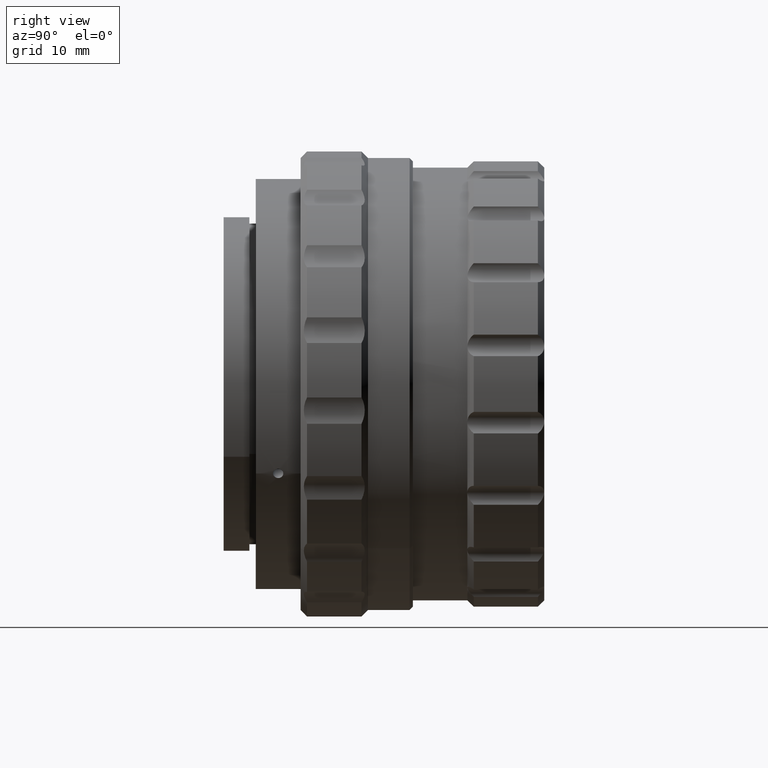
[diagram: clean part render]
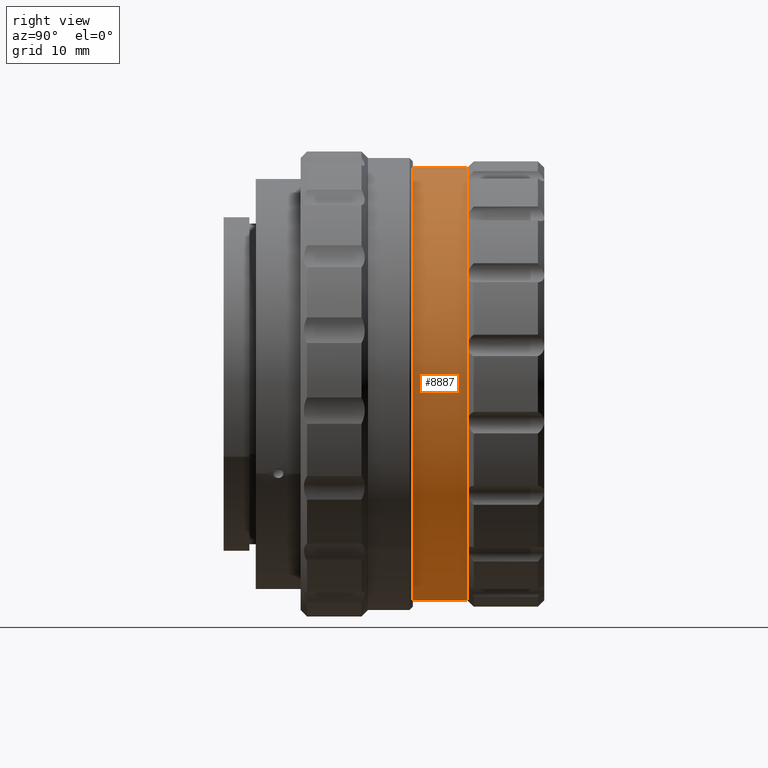
[diagram: same view with one face highlighted and labeled with its STEP entity id]
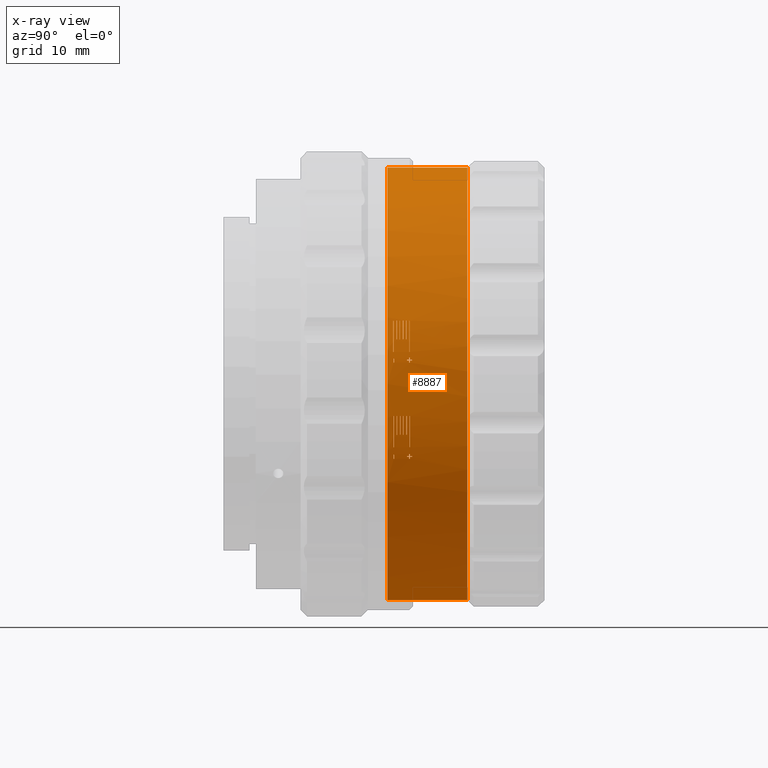
[diagram: x-ray of the same camera — body ghosted, the highlighted face saturated]
A machine part, right view. The second image highlights one B-rep face of the part: STEP entity #8887.
The next image is the same camera in x-ray: the body ghosted, the highlighted face saturated — about 0% of this face is hidden behind the body in this view.
In plain terms, the highlighted cylindrical surface (partial cylindrical patch) has radius 33.75 mm, axis along (-0, -1, -0).
Its self-contained STEP definition (entity closure, byte-faithful):
#16 = CARTESIAN_POINT ( 'NONE',  ( 6.662144804200877957, -7.063019231746517690, 11.16027208265095361 ) ) ;
#21 = ORIENTED_EDGE ( 'NONE', *, *, #6540, .T. ) ;
#24 = DIRECTION ( 'NONE',  ( -0.000000000000000000, -1.000000000000000000, -0.000000000000000000 ) ) ;
#26 = VERTEX_POINT ( 'NONE', #8881 ) ;
#29 = CARTESIAN_POINT ( 'NONE',  ( 6.839500559779337685, -6.548755687005305859, 11.16446497220267808 ) ) ;
#33 = VERTEX_POINT ( 'NONE', #10525 ) ;
#37 = DIRECTION ( 'NONE',  ( 0.000000000000000000, 1.000000000000000000, 0.000000000000000000 ) ) ;
#38 = ORIENTED_EDGE ( 'NONE', *, *, #4261, .T. ) ;
#49 = VECTOR ( 'NONE', #7995, 1000.000000000000000 ) ;
#59 = AXIS2_PLACEMENT_3D ( 'NONE', #1676, #5118, #9104 ) ;
#64 = DIRECTION ( 'NONE',  ( 0.000000000000000000, 1.000000000000000000, 0.000000000000000000 ) ) ;
#65 = CARTESIAN_POINT ( 'NONE',  ( 6.193124349124893513, -7.341707173596168978, 11.15386875915013931 ) ) ;
#74 = EDGE_CURVE ( 'NONE', #7446, #9024, #6633, .T. ) ;
#83 = CARTESIAN_POINT ( 'NONE',  ( 6.839500559779337685, -6.548755687005305859, 11.16446497220267808 ) ) ;
#94 = DIRECTION ( 'NONE',  ( 0.000000000000000000, 1.000000000000000000, 0.000000000000000000 ) ) ;
#95 = VERTEX_POINT ( 'NONE', #741 ) ;
#103 = EDGE_CURVE ( 'NONE', #7222, #2998, #9569, .T. ) ;
#110 = EDGE_LOOP ( 'NONE', ( #8091, #9646, #10386, #2245 ) ) ;
#115 = DIRECTION ( 'NONE',  ( -0.000000000000000000, -1.000000000000000000, -0.000000000000000000 ) ) ;
#117 = FACE_BOUND ( 'NONE', #6463, .T. ) ;
#128 = LINE ( 'NONE', #5241, #7493 ) ;
#131 = CARTESIAN_POINT ( 'NONE',  ( 27.66578284123322362, 2.951244312994563135, 19.04930649006528753 ) ) ;
#158 = DIRECTION ( 'NONE',  ( -0.000000000000000000, -1.000000000000000000, -0.000000000000000000 ) ) ;
#183 = DIRECTION ( 'NONE',  ( -0.000000000000000000, -1.000000000000000000, -0.000000000000000000 ) ) ;
#212 = AXIS2_PLACEMENT_3D ( 'NONE', #4785, #7232, #2244 ) ;
#220 = AXIS2_PLACEMENT_3D ( 'NONE', #601, #3122, #8686 ) ;
#234 = CARTESIAN_POINT ( 'NONE',  ( 38.25102632122809609, -8.098755687005539272, 54.75762822464900381 ) ) ;
#242 = AXIS2_PLACEMENT_3D ( 'NONE', #8748, #4704, #612 ) ;
#247 = EDGE_CURVE ( 'NONE', #7353, #2468, #5678, .T. ) ;
#259 = VERTEX_POINT ( 'NONE', #4489 ) ;
#264 = EDGE_CURVE ( 'NONE', #6930, #6338, #645, .T. ) ;
#290 = VERTEX_POINT ( 'NONE', #10193 ) ;
#301 = LINE ( 'NONE', #6041, #1638 ) ;
#303 = CARTESIAN_POINT ( 'NONE',  ( 39.35200755206343359, -6.508755687005441715, 39.92157627943440446 ) ) ;
#307 = CARTESIAN_POINT ( 'NONE',  ( 5.971701014312827738, -6.460342641653181950, 44.90330644533106863 ) ) ;
#325 = VERTEX_POINT ( 'NONE', #3630 ) ;
#329 = DIRECTION ( 'NONE',  ( 0.000000000000000000, 0.000000000000000000, -1.000000000000000000 ) ) ;
#365 = ORIENTED_EDGE ( 'NONE', *, *, #8387, .F. ) ;
#373 = CARTESIAN_POINT ( 'NONE',  ( 5.971701014312827738, -8.008755687005441715, 44.90330644533106863 ) ) ;
#374 = CARTESIAN_POINT ( 'NONE',  ( 37.79751242429267677, -5.671348304206956570, 33.67030915625472431 ) ) ;
#391 = DIRECTION ( 'NONE',  ( -0.000000000000000000, -1.000000000000000000, -0.000000000000000000 ) ) ;
#396 = CARTESIAN_POINT ( 'NONE',  ( 5.971701014312827738, -9.548755687005440862, 44.90330644533106863 ) ) ;
#413 = CIRCLE ( 'NONE', #4713, 33.75000000000000000 ) ;
#441 = EDGE_CURVE ( 'NONE', #3036, #259, #6804, .T. ) ;
#462 = ORIENTED_EDGE ( 'NONE', *, *, #2766, .F. ) ;
#467 = ORIENTED_EDGE ( 'NONE', *, *, #10462, .F. ) ;
#469 = VECTOR ( 'NONE', #8108, 1000.000000000000000 ) ;
#496 = CARTESIAN_POINT ( 'NONE',  ( 5.971701014312827738, -6.548755687005537673, 44.90330644533106863 ) ) ;
#498 = DIRECTION ( 'NONE',  ( 0.000000000000000000, 0.000000000000000000, -1.000000000000000000 ) ) ;
#499 = VERTEX_POINT ( 'NONE', #8166 ) ;
#524 = ORIENTED_EDGE ( 'NONE', *, *, #8155, .F. ) ;
#547 = EDGE_CURVE ( 'NONE', #2468, #7478, #7487, .T. ) ;
#551 = LINE ( 'NONE', #8800, #7658 ) ;
#563 = VERTEX_POINT ( 'NONE', #7789 ) ;
#567 = ORIENTED_EDGE ( 'NONE', *, *, #4113, .T. ) ;
#596 = EDGE_CURVE ( 'NONE', #5467, #6932, #3217, .T. ) ;
#601 = CARTESIAN_POINT ( 'NONE',  ( 5.971701014312827738, -6.508755687005441715, 44.90330644533106863 ) ) ;
#605 = CIRCLE ( 'NONE', #10372, 33.75000000000000000 ) ;
#606 = AXIS2_PLACEMENT_3D ( 'NONE', #5197, #9402, #3697 ) ;
#609 = DIRECTION ( 'NONE',  ( 0.000000000000000000, -1.000000000000000000, 0.000000000000000000 ) ) ;
#612 = DIRECTION ( 'NONE',  ( 0.000000000000000000, 0.000000000000000000, -1.000000000000000000 ) ) ;
#622 = ORIENTED_EDGE ( 'NONE', *, *, #9117, .T. ) ;
#624 = EDGE_CURVE ( 'NONE', #563, #5313, #6625, .T. ) ;
#627 = VERTEX_POINT ( 'NONE', #4400 ) ;
#639 = ORIENTED_EDGE ( 'NONE', *, *, #1370, .T. ) ;
#645 = CIRCLE ( 'NONE', #7495, 33.75000000000000711 ) ;
#653 = VERTEX_POINT ( 'NONE', #5363 ) ;
#654 = CARTESIAN_POINT ( 'NONE',  ( 38.25102632122809609, -8.048755687005538562, 54.75762822464900381 ) ) ;
#657 = DIRECTION ( 'NONE',  ( 0.000000000000000000, 0.000000000000000000, -1.000000000000000000 ) ) ;
#665 = CARTESIAN_POINT ( 'NONE',  ( 38.25102632122809609, -6.008755687005441715, 35.04898466601313345 ) ) ;
#672 = CARTESIAN_POINT ( 'NONE',  ( 37.75520500112512678, -5.671348304206956570, 33.55115359574843836 ) ) ;
#674 = CARTESIAN_POINT ( 'NONE',  ( 37.86040405578650336, -9.548755687005433757, 33.85011150754460374 ) ) ;
#687 = CARTESIAN_POINT ( 'NONE',  ( 38.25102632122809609, -6.058755687005441537, 35.04898466601314055 ) ) ;
#711 = CARTESIAN_POINT ( 'NONE',  ( 5.971701014312827738, -6.004964504394940228, 44.90330644533106863 ) ) ;
#716 = CARTESIAN_POINT ( 'NONE',  ( 39.35200755206343359, -6.008755687005441715, 39.92157627943440446 ) ) ;
#729 = VERTEX_POINT ( 'NONE', #5525 ) ;
#741 = CARTESIAN_POINT ( 'NONE',  ( 38.99837367305568137, -7.098755687005537496, 51.85322681122354993 ) ) ;
#745 = CARTESIAN_POINT ( 'NONE',  ( 6.359630737248483712, -7.235199531563654141, 78.65134077058617379 ) ) ;
#751 = EDGE_CURVE ( 'NONE', #4798, #9405, #1648, .T. ) ;
#762 = CARTESIAN_POINT ( 'NONE',  ( 38.99837367305568137, -7.548755687005538562, 51.85322681122353572 ) ) ;
#794 = CARTESIAN_POINT ( 'NONE',  ( 37.90885403606626625, -6.004964504394940228, 33.99089347362286873 ) ) ;
#834 = CARTESIAN_POINT ( 'NONE',  ( 5.971701014312827738, -8.558755687005442425, 44.90330644533106863 ) ) ;
#844 = CARTESIAN_POINT ( 'NONE',  ( 38.99837367305568137, -8.048755687005538562, 51.85322681122354282 ) ) ;
#847 = CARTESIAN_POINT ( 'NONE',  ( 38.99837367305568137, -8.098755687005539272, 51.85322681122354993 ) ) ;
#872 = DIRECTION ( 'NONE',  ( 0.000000000000000000, 0.000000000000000000, 1.000000000000000000 ) ) ;
#873 = DIRECTION ( 'NONE',  ( -0.000000000000000000, -1.000000000000000000, -0.000000000000000000 ) ) ;
#875 = DIRECTION ( 'NONE',  ( 0.9564244535382301349, 0.000000000000000000, 0.2919799045723832642 ) ) ;
#888 = AXIS2_PLACEMENT_3D ( 'NONE', #5875, #8323, #4695 ) ;
#904 = LINE ( 'NONE', #8890, #7263 ) ;
#907 = CARTESIAN_POINT ( 'NONE',  ( 39.51081535228982489, -6.460342641653277873, 48.67030915625472431 ) ) ;
#916 = CARTESIAN_POINT ( 'NONE',  ( 37.63930470772002224, -9.548755687005433757, 33.23174372574192148 ) ) ;
#919 = CIRCLE ( 'NONE', #7428, 33.75000000000000711 ) ;
#939 = DIRECTION ( 'NONE',  ( -0.000000000000000000, -1.000000000000000000, -0.000000000000000000 ) ) ;
#945 = VERTEX_POINT ( 'NONE', #5105 ) ;
#966 = B_SPLINE_CURVE_WITH_KNOTS ( 'NONE', 3,
 ( #83, #9780, #2505, #3365, #9876, #8880, #2552, #5839 ),
 .UNSPECIFIED., .F., .F.,
 ( 4, 2, 2, 4 ),
 ( 0.003684831641488132536, 0.004014108312126157124, 0.004343384982764181279, 0.005001938324040231323 ),
 .UNSPECIFIED. ) ;
#970 = CARTESIAN_POINT ( 'NONE',  ( 39.51081535228982489, -9.548755687005433757, 48.67030915625472431 ) ) ;
#998 = CARTESIAN_POINT ( 'NONE',  ( 39.35200755206343359, -7.058755687005440649, 39.92157627943440446 ) ) ;
#1002 = EDGE_CURVE ( 'NONE', #4786, #8609, #9206, .T. ) ;
#1027 = VECTOR ( 'NONE', #3911, 1000.000000000000000 ) ;
#1028 = DIRECTION ( 'NONE',  ( 0.000000000000000000, 0.000000000000000000, -1.000000000000000000 ) ) ;
#1030 = CARTESIAN_POINT ( 'NONE',  ( 6.081762515246403211, -7.355239949514295716, 11.15330644533106685 ) ) ;
#1031 = CARTESIAN_POINT ( 'NONE',  ( 39.52398426250909580, -6.124120064901323879, 48.55115359574843836 ) ) ;
#1041 = DIRECTION ( 'NONE',  ( -0.000000000000000000, -1.000000000000000000, -0.000000000000000000 ) ) ;
#1047 = VERTEX_POINT ( 'NONE', #1760 ) ;
#1078 = DIRECTION ( 'NONE',  ( 0.000000000000000000, -1.000000000000000000, 0.000000000000000000 ) ) ;
#1091 = ORIENTED_EDGE ( 'NONE', *, *, #74, .T. ) ;
#1099 = VERTEX_POINT ( 'NONE', #3199 ) ;
#1101 = CIRCLE ( 'NONE', #7781, 33.75000000000000000 ) ;
#1106 = CARTESIAN_POINT ( 'NONE',  ( 5.971701014312827738, -6.004964504395036151, 44.90330644533106863 ) ) ;
#1120 = EDGE_CURVE ( 'NONE', #7602, #325, #4659, .T. ) ;
#1129 = DIRECTION ( 'NONE',  ( -0.000000000000000000, -1.000000000000000000, -0.000000000000000000 ) ) ;
#1135 = EDGE_CURVE ( 'NONE', #4022, #1099, #10356, .T. ) ;
#1162 = DIRECTION ( 'NONE',  ( -0.000000000000000000, -1.000000000000000000, -0.000000000000000000 ) ) ;
#1175 = VERTEX_POINT ( 'NONE', #303 ) ;
#1189 = CARTESIAN_POINT ( 'NONE',  ( 39.35200755206341938, -6.098755687005538384, 49.88503661122782518 ) ) ;
#1204 = DIRECTION ( 'NONE',  ( 0.9564244535382301349, 0.000000000000000000, 0.2919799045723832642 ) ) ;
#1205 = EDGE_CURVE ( 'NONE', #3021, #8270, #7622, .T. ) ;
#1231 = DIRECTION ( 'NONE',  ( -0.000000000000000000, -1.000000000000000000, -0.000000000000000000 ) ) ;
#1248 = CARTESIAN_POINT ( 'NONE',  ( 5.971701014312827738, -6.008755687005441715, 44.90330644533106863 ) ) ;
#1257 = CARTESIAN_POINT ( 'NONE',  ( 37.79751242429267677, -9.548755687005433757, 33.67030915625472431 ) ) ;
#1259 = CIRCLE ( 'NONE', #6914, 33.75000000000000711 ) ;
#1275 = AXIS2_PLACEMENT_3D ( 'NONE', #8231, #1647, #8017 ) ;
#1284 = VERTEX_POINT ( 'NONE', #8841 ) ;
#1295 = DIRECTION ( 'NONE',  ( 0.9564244535382295798, 0.000000000000000000, 0.2919799045723848741 ) ) ;
#1303 = AXIS2_PLACEMENT_3D ( 'NONE', #9334, #1991, #5291 ) ;
#1306 = EDGE_CURVE ( 'NONE', #5466, #10043, #10540, .T. ) ;
#1339 = DIRECTION ( 'NONE',  ( -0.000000000000000000, -1.000000000000000000, -0.000000000000000000 ) ) ;
#1340 = EDGE_CURVE ( 'NONE', #9863, #1969, #10383, .T. ) ;
#1349 = CARTESIAN_POINT ( 'NONE',  ( 5.971701014312827738, -7.058755687005440649, 44.90330644533106863 ) ) ;
#1353 = VECTOR ( 'NONE', #3978, 1000.000000000000000 ) ;
#1370 = EDGE_CURVE ( 'NONE', #8878, #2640, #4570, .T. ) ;
#1390 = CARTESIAN_POINT ( 'NONE',  ( 38.25102632122808188, -7.048755687005537673, 54.75762822464906066 ) ) ;
#1400 = CARTESIAN_POINT ( 'NONE',  ( 17.51488085155438768, 2.951244312994556029, 76.61793239685538026 ) ) ;
#1432 = CIRCLE ( 'NONE', #9959, 33.75000000000000711 ) ;
#1451 = EDGE_CURVE ( 'NONE', #8270, #3296, #904, .T. ) ;
#1454 = VERTEX_POINT ( 'NONE', #5848 ) ;
#1462 = DIRECTION ( 'NONE',  ( -0.000000000000000000, -1.000000000000000000, -0.000000000000000000 ) ) ;
#1485 = ORIENTED_EDGE ( 'NONE', *, *, #3279, .T. ) ;
#1516 = CARTESIAN_POINT ( 'NONE',  ( 39.35200755206343359, -7.008755687005440826, 39.92157627943440446 ) ) ;
#1537 = EDGE_LOOP ( 'NONE', ( #9049, #2942, #3531, #1485 ) ) ;
#1551 = EDGE_CURVE ( 'NONE', #8830, #1047, #1812, .T. ) ;
#1570 = CARTESIAN_POINT ( 'NONE',  ( 5.971701014312827738, 2.951244312994556029, 44.90330644533106863 ) ) ;
#1573 = LINE ( 'NONE', #8104, #49 ) ;
#1576 = CARTESIAN_POINT ( 'NONE',  ( 38.77798399161419240, -7.558755687005440649, 36.97801167395336819 ) ) ;
#1599 = VECTOR ( 'NONE', #9396, 1000.000000000000000 ) ;
#1606 = CIRCLE ( 'NONE', #59, 33.75000000000000000 ) ;
#1638 = VECTOR ( 'NONE', #1162, 1000.000000000000000 ) ;
#1647 = DIRECTION ( 'NONE',  ( -0.000000000000000000, -1.000000000000000000, -0.000000000000000000 ) ) ;
#1648 = LINE ( 'NONE', #847, #5107 ) ;
#1652 = AXIS2_PLACEMENT_3D ( 'NONE', #9908, #873, #5708 ) ;
#1660 = CIRCLE ( 'NONE', #9356, 33.75000000000000000 ) ;
#1671 = CARTESIAN_POINT ( 'NONE',  ( 39.20896267847491856, 2.951244312994554253, 50.76393244158963824 ) ) ;
#1674 = AXIS2_PLACEMENT_3D ( 'NONE', #5559, #5613, #2108 ) ;
#1676 = CARTESIAN_POINT ( 'NONE',  ( 5.971701014312827738, 2.951244312994556029, 44.90330644533106863 ) ) ;
#1681 = EDGE_CURVE ( 'NONE', #499, #1454, #4300, .T. ) ;
#1684 = FACE_BOUND ( 'NONE', #5151, .T. ) ;
#1692 = LINE ( 'NONE', #2589, #3287 ) ;
#1700 = ORIENTED_EDGE ( 'NONE', *, *, #6879, .T. ) ;
#1726 = EDGE_CURVE ( 'NONE', #1284, #26, #3260, .T. ) ;
#1729 = FACE_BOUND ( 'NONE', #4502, .T. ) ;
#1752 = ORIENTED_EDGE ( 'NONE', *, *, #1451, .T. ) ;
#1754 = CARTESIAN_POINT ( 'NONE',  ( 5.971701014312816191, -7.345875764701254695, 78.65330644533111126 ) ) ;
#1760 = CARTESIAN_POINT ( 'NONE',  ( 38.77798399161419240, -7.508755687005440826, 36.97801167395336819 ) ) ;
#1784 = FACE_BOUND ( 'NONE', #4666, .T. ) ;
#1789 = EDGE_CURVE ( 'NONE', #9405, #4786, #2647, .T. ) ;
#1812 = LINE ( 'NONE', #5262, #4030 ) ;
#1821 = CARTESIAN_POINT ( 'NONE',  ( 38.77798399161419240, -6.558755687005441537, 36.97801167395336819 ) ) ;
#1830 = EDGE_CURVE ( 'NONE', #1175, #4407, #9681, .T. ) ;
#1886 = CARTESIAN_POINT ( 'NONE',  ( 39.35200755206343359, -8.508755687005439938, 39.92157627943440446 ) ) ;
#1888 = CARTESIAN_POINT ( 'NONE',  ( 35.20005839203743392, 2.951244312994556029, 28.02830644533072757 ) ) ;
#1915 = EDGE_CURVE ( 'NONE', #8946, #5785, #4863, .T. ) ;
#1935 = CARTESIAN_POINT ( 'NONE',  ( 37.63887182307448853, -6.004964504394940228, 33.23056927838030106 ) ) ;
#1946 = CARTESIAN_POINT ( 'NONE',  ( 37.79751242429267677, -9.548755687005433757, 33.67030915625472431 ) ) ;
#1948 = CARTESIAN_POINT ( 'NONE',  ( 6.703898238415471944, -6.548755687005018089, 78.64536309908316980 ) ) ;
#1955 = CARTESIAN_POINT ( 'NONE',  ( 5.971701014312827738, 2.951244312994556029, 44.90330644533106863 ) ) ;
#1965 = ORIENTED_EDGE ( 'NONE', *, *, #6912, .T. ) ;
#1969 = VERTEX_POINT ( 'NONE', #2825 ) ;
#1980 = AXIS2_PLACEMENT_3D ( 'NONE', #7655, #7068, #4613 ) ;
#1991 = DIRECTION ( 'NONE',  ( -0.000000000000000000, -1.000000000000000000, -0.000000000000000000 ) ) ;
#2020 = EDGE_LOOP ( 'NONE', ( #4233, #9558, #2831, #9519 ) ) ;
#2035 = DIRECTION ( 'NONE',  ( 0.9564244535382295798, 0.000000000000000000, 0.2919799045723848741 ) ) ;
#2041 = DIRECTION ( 'NONE',  ( 0.000000000000000000, -1.000000000000000000, 0.000000000000000000 ) ) ;
#2047 = EDGE_CURVE ( 'NONE', #95, #3485, #9399, .T. ) ;
#2057 = DIRECTION ( 'NONE',  ( 0.9564244535382295798, 0.000000000000000000, 0.2919799045723848741 ) ) ;
#2108 = DIRECTION ( 'NONE',  ( 0.000000000000000000, 0.000000000000000000, -1.000000000000000000 ) ) ;
#2128 = EDGE_CURVE ( 'NONE', #5313, #7370, #3747, .T. ) ;
#2146 = AXIS2_PLACEMENT_3D ( 'NONE', #6001, #4997, #3476 ) ;
#2174 = CARTESIAN_POINT ( 'NONE',  ( 5.971701014312827738, -8.476191794886041464, 44.90330644533106863 ) ) ;
#2206 = CARTESIAN_POINT ( 'NONE',  ( 39.35200755206343359, -7.558755687005440649, 39.92157627943440446 ) ) ;
#2216 = DIRECTION ( 'NONE',  ( 0.000000000000000000, 1.000000000000000000, 0.000000000000000000 ) ) ;
#2242 = CARTESIAN_POINT ( 'NONE',  ( 39.52398426250909580, -6.460342641653277873, 48.55115359574843836 ) ) ;
#2244 = DIRECTION ( 'NONE',  ( 0.9564244535382295798, 0.000000000000000000, 0.2919799045723848741 ) ) ;
#2245 = ORIENTED_EDGE ( 'NONE', *, *, #5513, .F. ) ;
#2258 = VERTEX_POINT ( 'NONE', #672 ) ;
#2285 = ORIENTED_EDGE ( 'NONE', *, *, #2128, .T. ) ;
#2288 = CARTESIAN_POINT ( 'NONE',  ( 5.971701014312827738, -6.058755687005441537, 44.90330644533106863 ) ) ;
#2334 = VECTOR ( 'NONE', #8937, 1000.000000000000000 ) ;
#2357 = CARTESIAN_POINT ( 'NONE',  ( 6.703898238411462707, -6.746412627898825676, 78.64536309908325507 ) ) ;
#2362 = CARTESIAN_POINT ( 'NONE',  ( 38.99837367305566715, -6.548755687005537673, 51.85322681122359967 ) ) ;
#2372 = DIRECTION ( 'NONE',  ( -0.000000000000000000, -1.000000000000000000, -0.000000000000000000 ) ) ;
#2419 = CARTESIAN_POINT ( 'NONE',  ( 38.99837367305568137, -8.098755687005539272, 51.85322681122354993 ) ) ;
#2433 = ORIENTED_EDGE ( 'NONE', *, *, #8144, .T. ) ;
#2461 = LINE ( 'NONE', #8025, #2334 ) ;
#2468 = VERTEX_POINT ( 'NONE', #2362 ) ;
#2499 = CIRCLE ( 'NONE', #2146, 33.75000000000000711 ) ;
#2501 = VERTEX_POINT ( 'NONE', #907 ) ;
#2505 = CARTESIAN_POINT ( 'NONE',  ( 6.816638765889197593, -6.328803971803168338, 11.16385517453889520 ) ) ;
#2510 = ORIENTED_EDGE ( 'NONE', *, *, #1726, .F. ) ;
#2532 = DIRECTION ( 'NONE',  ( 0.9564244535382295798, 0.000000000000000000, 0.2919799045723848741 ) ) ;
#2545 = CARTESIAN_POINT ( 'NONE',  ( 37.86040405578650336, -8.538199039718769257, 33.85011150754460374 ) ) ;
#2552 = CARTESIAN_POINT ( 'NONE',  ( 6.193578483856853723, -5.732757967144071820, 11.15330644533106685 ) ) ;
#2573 = LINE ( 'NONE', #916, #3229 ) ;
#2581 = FACE_BOUND ( 'NONE', #2020, .T. ) ;
#2587 = CARTESIAN_POINT ( 'NONE',  ( 5.971701014312827738, -5.751635609311128050, 11.15330644533106508 ) ) ;
#2589 = CARTESIAN_POINT ( 'NONE',  ( 39.47325519148706263, -9.548755687005433757, 48.99089347362286873 ) ) ;
#2596 = VECTOR ( 'NONE', #8538, 1000.000000000000000 ) ;
#2632 = DIRECTION ( 'NONE',  ( -0.000000000000000000, -1.000000000000000000, -0.000000000000000000 ) ) ;
#2634 = AXIS2_PLACEMENT_3D ( 'NONE', #5278, #8522, #6065 ) ;
#2640 = VERTEX_POINT ( 'NONE', #8403 ) ;
#2642 = DIRECTION ( 'NONE',  ( 0.000000000000000000, 0.000000000000000000, 1.000000000000000000 ) ) ;
#2647 = CIRCLE ( 'NONE', #1275, 33.75000000000000000 ) ;
#2680 = CARTESIAN_POINT ( 'NONE',  ( 5.971701014312827738, -8.058755687005440649, 44.90330644533106863 ) ) ;
#2693 = DIRECTION ( 'NONE',  ( 0.9890461196370547992, 0.000000000000000000, -0.1476068197302714269 ) ) ;
#2696 = VECTOR ( 'NONE', #9945, 1000.000000000000000 ) ;
#2731 = VERTEX_POINT ( 'NONE', #10421 ) ;
#2742 = CARTESIAN_POINT ( 'NONE',  ( 38.77798399161419240, -8.058755687005440649, 36.97801167395333977 ) ) ;
#2756 = CARTESIAN_POINT ( 'NONE',  ( 6.703898238411124311, -6.351234201477051755, 78.64536309908329770 ) ) ;
#2761 = VERTEX_POINT ( 'NONE', #2242 ) ;
#2766 = EDGE_CURVE ( 'NONE', #499, #5511, #7230, .T. ) ;
#2773 = EDGE_LOOP ( 'NONE', ( #6536, #8551, #3805, #4896 ) ) ;
#2817 = EDGE_LOOP ( 'NONE', ( #3969, #3331, #5828, #4757 ) ) ;
#2823 = ORIENTED_EDGE ( 'NONE', *, *, #4041, .T. ) ;
#2825 = CARTESIAN_POINT ( 'NONE',  ( 38.25102632122808188, -7.098755687005537496, 54.75762822464906066 ) ) ;
#2831 = ORIENTED_EDGE ( 'NONE', *, *, #751, .F. ) ;
#2836 = VERTEX_POINT ( 'NONE', #794 ) ;
#2844 = LINE ( 'NONE', #3545, #7097 ) ;
#2862 = CARTESIAN_POINT ( 'NONE',  ( 39.20896267847479066, 2.951244312994550700, 39.04268044907182400 ) ) ;
#2863 = CARTESIAN_POINT ( 'NONE',  ( 38.99837367305568137, -7.598755687005538384, 51.85322681122354993 ) ) ;
#2866 = DIRECTION ( 'NONE',  ( -0.000000000000000000, -1.000000000000000000, -0.000000000000000000 ) ) ;
#2889 = AXIS2_PLACEMENT_3D ( 'NONE', #373, #5277, #8414 ) ;
#2903 = EDGE_CURVE ( 'NONE', #5149, #3424, #966, .T. ) ;
#2908 = CARTESIAN_POINT ( 'NONE',  ( 38.25102632122808188, -6.098755687005538384, 54.75762822464906066 ) ) ;
#2926 = VERTEX_POINT ( 'NONE', #6730 ) ;
#2942 = ORIENTED_EDGE ( 'NONE', *, *, #7548, .F. ) ;
#2953 = ORIENTED_EDGE ( 'NONE', *, *, #9127, .F. ) ;
#2998 = VERTEX_POINT ( 'NONE', #998 ) ;
#3013 = DIRECTION ( 'NONE',  ( -0.000000000000000000, -1.000000000000000000, -0.000000000000000000 ) ) ;
#3021 = VERTEX_POINT ( 'NONE', #5939 ) ;
#3034 = CARTESIAN_POINT ( 'NONE',  ( 39.55717414288987754, -9.548755687005433757, 48.23174372574192859 ) ) ;
#3036 = VERTEX_POINT ( 'NONE', #4447 ) ;
#3059 = DIRECTION ( 'NONE',  ( 0.9564244535382301349, 0.000000000000000000, 0.2919799045723832642 ) ) ;
#3076 = ORIENTED_EDGE ( 'NONE', *, *, #10539, .T. ) ;
#3111 = EDGE_CURVE ( 'NONE', #945, #8192, #7060, .T. ) ;
#3117 = VECTOR ( 'NONE', #2866, 1000.000000000000000 ) ;
#3122 = DIRECTION ( 'NONE',  ( -0.000000000000000000, -1.000000000000000000, -0.000000000000000000 ) ) ;
#3149 = CARTESIAN_POINT ( 'NONE',  ( 37.63930470772002224, -8.538199039718769257, 33.23174372574192148 ) ) ;
#3161 = VECTOR ( 'NONE', #10062, 1000.000000000000000 ) ;
#3199 = CARTESIAN_POINT ( 'NONE',  ( 39.55717414288987754, -8.476191794886137387, 48.23174372574192859 ) ) ;
#3201 = ORIENTED_EDGE ( 'NONE', *, *, #4626, .F. ) ;
#3213 = DIRECTION ( 'NONE',  ( 0.000000000000000000, -1.000000000000000000, 0.000000000000000000 ) ) ;
#3214 = CARTESIAN_POINT ( 'NONE',  ( 38.25102632122808188, -6.048755687005536785, 54.75762822464906066 ) ) ;
#3217 = CIRCLE ( 'NONE', #8174, 33.75000000000000000 ) ;
#3227 = ORIENTED_EDGE ( 'NONE', *, *, #596, .T. ) ;
#3229 = VECTOR ( 'NONE', #9102, 1000.000000000000000 ) ;
#3231 = CARTESIAN_POINT ( 'NONE',  ( 38.25102632122808188, -8.558755687005442425, 35.04898466601311213 ) ) ;
#3244 = CARTESIAN_POINT ( 'NONE',  ( 6.499929108585974724, -7.212201917877414381, 11.15734289843517324 ) ) ;
#3255 = ORIENTED_EDGE ( 'NONE', *, *, #4430, .T. ) ;
#3260 = LINE ( 'NONE', #9082, #3696 ) ;
#3265 = VERTEX_POINT ( 'NONE', #3297 ) ;
#3266 = AXIS2_PLACEMENT_3D ( 'NONE', #834, #24, #4817 ) ;
#3267 = VECTOR ( 'NONE', #5408, 1000.000000000000000 ) ;
#3269 = CARTESIAN_POINT ( 'NONE',  ( 38.25102632122808188, -7.598755687005538384, 54.75762822464906066 ) ) ;
#3279 = EDGE_CURVE ( 'NONE', #5466, #2926, #7882, .T. ) ;
#3287 = VECTOR ( 'NONE', #4170, 1000.000000000000000 ) ;
#3291 = CARTESIAN_POINT ( 'NONE',  ( 6.816191596316654611, -6.769709628452091899, 11.16384459299191079 ) ) ;
#3296 = VERTEX_POINT ( 'NONE', #5620 ) ;
#3297 = CARTESIAN_POINT ( 'NONE',  ( 5.971701014312827738, 2.951244312994556029, 11.15330644533106508 ) ) ;
#3298 = DIRECTION ( 'NONE',  ( 0.9890461196370547992, 0.000000000000000000, -0.1476068197302714269 ) ) ;
#3304 = EDGE_CURVE ( 'NONE', #7961, #9142, #4214, .T. ) ;
#3330 = AXIS2_PLACEMENT_3D ( 'NONE', #8778, #1339, #9580 ) ;
#3331 = ORIENTED_EDGE ( 'NONE', *, *, #10344, .F. ) ;
#3349 = ORIENTED_EDGE ( 'NONE', *, *, #7241, .F. ) ;
#3355 = AXIS2_PLACEMENT_3D ( 'NONE', #7287, #37, #5840 ) ;
#3365 = CARTESIAN_POINT ( 'NONE',  ( 6.727403388463113032, -6.125532766814909991, 11.16173852414663870 ) ) ;
#3375 = CARTESIAN_POINT ( 'NONE',  ( 39.51081535228982489, -6.004964504395036151, 48.67030915625472431 ) ) ;
#3386 = VERTEX_POINT ( 'NONE', #5294 ) ;
#3402 = FACE_BOUND ( 'NONE', #5226, .T. ) ;
#3407 = CARTESIAN_POINT ( 'NONE',  ( 5.971701014312827738, -5.671348304206956570, 44.90330644533106863 ) ) ;
#3410 = EDGE_CURVE ( 'NONE', #10438, #2258, #6554, .T. ) ;
#3424 = VERTEX_POINT ( 'NONE', #2587 ) ;
#3450 = CARTESIAN_POINT ( 'NONE',  ( 5.971701014312827738, 2.951244312994556029, 78.65330644533106863 ) ) ;
#3467 = ORIENTED_EDGE ( 'NONE', *, *, #9924, .F. ) ;
#3469 = DIRECTION ( 'NONE',  ( 0.000000000000000000, 0.000000000000000000, -1.000000000000000000 ) ) ;
#3476 = DIRECTION ( 'NONE',  ( 0.9890461196370547992, 0.000000000000000000, -0.1476068197302714269 ) ) ;
#3478 = VECTOR ( 'NONE', #9762, 1000.000000000000000 ) ;
#3485 = VERTEX_POINT ( 'NONE', #10187 ) ;
#3502 = LINE ( 'NONE', #9332, #4898 ) ;
#3519 = CARTESIAN_POINT ( 'NONE',  ( 39.49013220971464477, -8.476191794886137387, 48.85011150754460374 ) ) ;
#3529 = DIRECTION ( 'NONE',  ( 0.000000000000000000, 0.000000000000000000, 1.000000000000000000 ) ) ;
#3531 = ORIENTED_EDGE ( 'NONE', *, *, #1306, .F. ) ;
#3545 = CARTESIAN_POINT ( 'NONE',  ( 38.77798399161419240, -6.558755687005441537, 36.97801167395336819 ) ) ;
#3548 = CARTESIAN_POINT ( 'NONE',  ( 37.63930470772002224, -8.476191794886041464, 33.23174372574192148 ) ) ;
#3551 = CARTESIAN_POINT ( 'NONE',  ( 38.25102632122808188, -6.598755687005538384, 54.75762822464906066 ) ) ;
#3562 = AXIS2_PLACEMENT_3D ( 'NONE', #5707, #64, #872 ) ;
#3577 = EDGE_CURVE ( 'NONE', #10516, #2836, #1573, .T. ) ;
#3605 = CARTESIAN_POINT ( 'NONE',  ( 39.55729051397486984, -6.004964504395036151, 48.23056927838030106 ) ) ;
#3625 = EDGE_CURVE ( 'NONE', #2258, #5467, #7567, .T. ) ;
#3628 = CARTESIAN_POINT ( 'NONE',  ( 37.79751242429267677, -6.460342641653181950, 33.67030915625472431 ) ) ;
#3630 = CARTESIAN_POINT ( 'NONE',  ( 39.49013220971464477, -8.538199039718866956, 48.85011150754460374 ) ) ;
#3642 = EDGE_CURVE ( 'NONE', #3710, #9727, #9952, .T. ) ;
#3677 = CIRCLE ( 'NONE', #5895, 33.75000000000000000 ) ;
#3696 = VECTOR ( 'NONE', #8071, 1000.000000000000000 ) ;
#3697 = DIRECTION ( 'NONE',  ( 0.000000000000000000, 0.000000000000000000, -1.000000000000000000 ) ) ;
#3698 = VERTEX_POINT ( 'NONE', #5012 ) ;
#3710 = VERTEX_POINT ( 'NONE', #8074 ) ;
#3711 = AXIS2_PLACEMENT_3D ( 'NONE', #711, #6449, #9704 ) ;
#3747 = LINE ( 'NONE', #1257, #3267 ) ;
#3760 = B_SPLINE_CURVE_WITH_KNOTS ( 'NONE', 3,
 ( #6030, #4487, #5188, #10080, #2756, #1948 ),
 .UNSPECIFIED., .F., .F.,
 ( 4, 2, 4 ),
 ( 0.001318484155839020917, 0.001909868696267114606, 0.002501253236695208295 ),
 .UNSPECIFIED. ) ;
#3781 = LINE ( 'NONE', #7042, #4216 ) ;
#3805 = ORIENTED_EDGE ( 'NONE', *, *, #1135, .F. ) ;
#3814 = CARTESIAN_POINT ( 'NONE',  ( 39.35200755206343359, -7.008755687005440826, 39.92157627943440446 ) ) ;
#3826 = EDGE_CURVE ( 'NONE', #7908, #8192, #8260, .T. ) ;
#3864 = ORIENTED_EDGE ( 'NONE', *, *, #1551, .F. ) ;
#3889 = CIRCLE ( 'NONE', #1980, 33.75000000000000711 ) ;
#3894 = CARTESIAN_POINT ( 'NONE',  ( 38.25102632122808188, -8.508755687005439938, 35.04898466601310503 ) ) ;
#3911 = DIRECTION ( 'NONE',  ( 0.000000000000000000, -1.000000000000000000, 0.000000000000000000 ) ) ;
#3947 = EDGE_CURVE ( 'NONE', #3296, #7961, #6956, .T. ) ;
#3969 = ORIENTED_EDGE ( 'NONE', *, *, #1340, .F. ) ;
#3976 = VERTEX_POINT ( 'NONE', #3214 ) ;
#3977 = DIRECTION ( 'NONE',  ( 0.000000000000000000, -1.000000000000000000, 0.000000000000000000 ) ) ;
#3978 = DIRECTION ( 'NONE',  ( 0.000000000000000000, 1.000000000000000000, 0.000000000000000000 ) ) ;
#3979 = DIRECTION ( 'NONE',  ( 0.000000000000000000, 0.000000000000000000, -1.000000000000000000 ) ) ;
#3983 = ORIENTED_EDGE ( 'NONE', *, *, #3304, .T. ) ;
#3992 = ORIENTED_EDGE ( 'NONE', *, *, #10446, .T. ) ;
#3999 = LINE ( 'NONE', #6288, #7122 ) ;
#4005 = AXIS2_PLACEMENT_3D ( 'NONE', #3407, #9963, #2642 ) ;
#4022 = VERTEX_POINT ( 'NONE', #6533 ) ;
#4028 = CIRCLE ( 'NONE', #9967, 33.75000000000000711 ) ;
#4030 = VECTOR ( 'NONE', #4457, 1000.000000000000000 ) ;
#4041 = EDGE_CURVE ( 'NONE', #5785, #3036, #9837, .T. ) ;
#4074 = CIRCLE ( 'NONE', #5943, 33.75000000000000000 ) ;
#4105 = CIRCLE ( 'NONE', #2889, 33.75000000000000711 ) ;
#4113 = EDGE_CURVE ( 'NONE', #7972, #2761, #301, .T. ) ;
#4153 = EDGE_CURVE ( 'NONE', #3386, #5201, #7171, .T. ) ;
#4157 = AXIS2_PLACEMENT_3D ( 'NONE', #2174, #4660, #7010 ) ;
#4170 = DIRECTION ( 'NONE',  ( 0.000000000000000000, 1.000000000000000000, 0.000000000000000000 ) ) ;
#4191 = ORIENTED_EDGE ( 'NONE', *, *, #5382, .F. ) ;
#4214 = LINE ( 'NONE', #10075, #10086 ) ;
#4216 = VECTOR ( 'NONE', #10280, 1000.000000000000000 ) ;
#4220 = EDGE_CURVE ( 'NONE', #5824, #3386, #6375, .T. ) ;
#4228 = ORIENTED_EDGE ( 'NONE', *, *, #3947, .T. ) ;
#4233 = ORIENTED_EDGE ( 'NONE', *, *, #1002, .F. ) ;
#4257 = AXIS2_PLACEMENT_3D ( 'NONE', #2680, #158, #7614 ) ;
#4261 = EDGE_CURVE ( 'NONE', #8830, #7058, #6026, .T. ) ;
#4264 = FACE_BOUND ( 'NONE', #110, .T. ) ;
#4294 = EDGE_CURVE ( 'NONE', #8758, #3021, #1692, .T. ) ;
#4296 = ORIENTED_EDGE ( 'NONE', *, *, #5571, .F. ) ;
#4300 = CIRCLE ( 'NONE', #6174, 33.75000000000000711 ) ;
#4318 = LINE ( 'NONE', #5295, #2596 ) ;
#4326 = DIRECTION ( 'NONE',  ( 0.000000000000000000, -1.000000000000000000, 0.000000000000000000 ) ) ;
#4338 = VECTOR ( 'NONE', #2632, 1000.000000000000000 ) ;
#4352 = EDGE_CURVE ( 'NONE', #8013, #627, #4318, .T. ) ;
#4353 = DIRECTION ( 'NONE',  ( 0.000000000000000000, 1.000000000000000000, 0.000000000000000000 ) ) ;
#4377 = VECTOR ( 'NONE', #6309, 1000.000000000000000 ) ;
#4400 = CARTESIAN_POINT ( 'NONE',  ( 38.25102632122809609, -8.598755687005537496, 54.75762822464900381 ) ) ;
#4407 = VERTEX_POINT ( 'NONE', #7736 ) ;
#4415 = CARTESIAN_POINT ( 'NONE',  ( 5.971701014312827738, 2.951244312994556029, 44.90330644533106863 ) ) ;
#4430 = EDGE_CURVE ( 'NONE', #7189, #6959, #9264, .T. ) ;
#4445 = ORIENTED_EDGE ( 'NONE', *, *, #7753, .F. ) ;
#4447 = CARTESIAN_POINT ( 'NONE',  ( 35.20005839203778919, 2.951244312994557806, 61.77830644533079862 ) ) ;
#4457 = DIRECTION ( 'NONE',  ( 0.000000000000000000, 1.000000000000000000, 0.000000000000000000 ) ) ;
#4468 = CARTESIAN_POINT ( 'NONE',  ( 38.25102632122808188, -6.548755687005537673, 54.75762822464906066 ) ) ;
#4485 = ORIENTED_EDGE ( 'NONE', *, *, #247, .F. ) ;
#4486 = EDGE_CURVE ( 'NONE', #4674, #729, #10237, .T. ) ;
#4487 = CARTESIAN_POINT ( 'NONE',  ( 6.169995201939745932, -5.768506753215557836, 78.65330644533105442 ) ) ;
#4489 = CARTESIAN_POINT ( 'NONE',  ( 27.66578284123374587, 2.951244312994550700, 70.75730640059639143 ) ) ;
#4502 = EDGE_LOOP ( 'NONE', ( #4296, #3864, #38, #524 ) ) ;
#4527 = AXIS2_PLACEMENT_3D ( 'NONE', #4975, #5974, #875 ) ;
#4536 = CARTESIAN_POINT ( 'NONE',  ( 39.35200755206341938, -8.598755687005537496, 49.88503661122776833 ) ) ;
#4541 = DIRECTION ( 'NONE',  ( -0.000000000000000000, -1.000000000000000000, -0.000000000000000000 ) ) ;
#4570 = LINE ( 'NONE', #8029, #6154 ) ;
#4611 = ORIENTED_EDGE ( 'NONE', *, *, #8195, .T. ) ;
#4613 = DIRECTION ( 'NONE',  ( 0.9890461196370547992, 0.000000000000000000, -0.1476068197302714269 ) ) ;
#4626 = EDGE_CURVE ( 'NONE', #9727, #6726, #4105, .T. ) ;
#4639 = CARTESIAN_POINT ( 'NONE',  ( 39.52398426250909580, -6.004964504395036151, 48.55115359574843836 ) ) ;
#4659 = LINE ( 'NONE', #8061, #4729 ) ;
#4660 = DIRECTION ( 'NONE',  ( 0.000000000000000000, -1.000000000000000000, 0.000000000000000000 ) ) ;
#4666 = EDGE_LOOP ( 'NONE', ( #7293, #3467, #2953, #4939 ) ) ;
#4674 = VERTEX_POINT ( 'NONE', #3605 ) ;
#4695 = DIRECTION ( 'NONE',  ( 0.000000000000000000, 0.000000000000000000, -1.000000000000000000 ) ) ;
#4704 = DIRECTION ( 'NONE',  ( -0.000000000000000000, -1.000000000000000000, -0.000000000000000000 ) ) ;
#4713 = AXIS2_PLACEMENT_3D ( 'NONE', #5809, #6499, #4800 ) ;
#4729 = VECTOR ( 'NONE', #7273, 1000.000000000000000 ) ;
#4757 = ORIENTED_EDGE ( 'NONE', *, *, #6855, .T. ) ;
#4770 = AXIS2_PLACEMENT_3D ( 'NONE', #307, #6849, #8555 ) ;
#4785 = CARTESIAN_POINT ( 'NONE',  ( 5.971701014312827738, -7.598755687005538384, 44.90330644533106863 ) ) ;
#4786 = VERTEX_POINT ( 'NONE', #654 ) ;
#4798 = VERTEX_POINT ( 'NONE', #2419 ) ;
#4800 = DIRECTION ( 'NONE',  ( 0.000000000000000000, 0.000000000000000000, -1.000000000000000000 ) ) ;
#4817 = DIRECTION ( 'NONE',  ( 0.9890461196370547992, 0.000000000000000000, -0.1476068197302714269 ) ) ;
#4834 = ORIENTED_EDGE ( 'NONE', *, *, #5921, .T. ) ;
#4841 = CARTESIAN_POINT ( 'NONE',  ( 6.626509273611324247, -6.944655326908018012, 78.64721754692230604 ) ) ;
#4863 = CIRCLE ( 'NONE', #5874, 33.75000000000000000 ) ;
#4896 = ORIENTED_EDGE ( 'NONE', *, *, #6237, .F. ) ;
#4898 = VECTOR ( 'NONE', #1078, 1000.000000000000000 ) ;
#4920 = FACE_OUTER_BOUND ( 'NONE', #5477, .T. ) ;
#4939 = ORIENTED_EDGE ( 'NONE', *, *, #9631, .T. ) ;
#4941 = DIRECTION ( 'NONE',  ( 0.000000000000000000, 1.000000000000000000, 0.000000000000000000 ) ) ;
#4971 = DIRECTION ( 'NONE',  ( 0.9564244535382295798, 0.000000000000000000, 0.2919799045723848741 ) ) ;
#4975 = CARTESIAN_POINT ( 'NONE',  ( 5.971701014312827738, -8.548755687005536785, 44.90330644533106863 ) ) ;
#4997 = DIRECTION ( 'NONE',  ( -0.000000000000000000, -1.000000000000000000, -0.000000000000000000 ) ) ;
#5000 = VERTEX_POINT ( 'NONE', #9415 ) ;
#5009 = CARTESIAN_POINT ( 'NONE',  ( 38.77798399161419240, -6.508755687005441715, 36.97801167395336819 ) ) ;
#5012 = CARTESIAN_POINT ( 'NONE',  ( 6.703898238415471944, -6.548755687005018089, 78.64536309908316980 ) ) ;
#5026 = ORIENTED_EDGE ( 'NONE', *, *, #7112, .T. ) ;
#5088 = EDGE_CURVE ( 'NONE', #4798, #8609, #6798, .T. ) ;
#5105 = CARTESIAN_POINT ( 'NONE',  ( 38.25102632122808188, -7.548755687005538562, 54.75762822464906066 ) ) ;
#5107 = VECTOR ( 'NONE', #4941, 1000.000000000000000 ) ;
#5111 = CIRCLE ( 'NONE', #7993, 33.75000000000000711 ) ;
#5118 = DIRECTION ( 'NONE',  ( -0.000000000000000000, -1.000000000000000000, -0.000000000000000000 ) ) ;
#5126 = CARTESIAN_POINT ( 'NONE',  ( 5.971701014312827738, -8.476191794886137387, 44.90330644533106863 ) ) ;
#5140 = VECTOR ( 'NONE', #6497, 1000.000000000000000 ) ;
#5149 = VERTEX_POINT ( 'NONE', #29 ) ;
#5151 = EDGE_LOOP ( 'NONE', ( #10362, #7830, #1752, #4228, #3983, #3992, #6146, #2433, #567, #1965, #9088, #9140 ) ) ;
#5188 = CARTESIAN_POINT ( 'NONE',  ( 6.358720476869174298, -5.861256808676303720, 78.65135530398870856 ) ) ;
#5197 = CARTESIAN_POINT ( 'NONE',  ( 5.971701014312827738, 2.951244312994556029, 44.90330644533106863 ) ) ;
#5201 = VERTEX_POINT ( 'NONE', #2545 ) ;
#5226 = EDGE_LOOP ( 'NONE', ( #365, #7109, #10098, #5794 ) ) ;
#5240 = ORIENTED_EDGE ( 'NONE', *, *, #6987, .F. ) ;
#5241 = CARTESIAN_POINT ( 'NONE',  ( 5.971701014312827738, -9.548755687005433757, 11.15330644533106508 ) ) ;
#5256 = AXIS2_PLACEMENT_3D ( 'NONE', #8992, #7236, #10478 ) ;
#5262 = CARTESIAN_POINT ( 'NONE',  ( 38.77798399161419240, -7.558755687005440649, 36.97801167395336819 ) ) ;
#5277 = DIRECTION ( 'NONE',  ( -0.000000000000000000, -1.000000000000000000, -0.000000000000000000 ) ) ;
#5278 = CARTESIAN_POINT ( 'NONE',  ( 5.971701014312827738, -6.004964504395036151, 44.90330644533106863 ) ) ;
#5286 = EDGE_CURVE ( 'NONE', #2640, #3698, #3760, .T. ) ;
#5289 = CARTESIAN_POINT ( 'NONE',  ( 5.971701014312827738, -6.460342641653277873, 44.90330644533106863 ) ) ;
#5291 = DIRECTION ( 'NONE',  ( 0.9564244535382295798, 0.000000000000000000, 0.2919799045723848741 ) ) ;
#5292 = CARTESIAN_POINT ( 'NONE',  ( 39.52398426250909580, -5.671348304207051605, 48.55115359574843836 ) ) ;
#5294 = CARTESIAN_POINT ( 'NONE',  ( 37.86040405578650336, -8.476191794886041464, 33.85011150754460374 ) ) ;
#5295 = CARTESIAN_POINT ( 'NONE',  ( 38.25102632122809609, -8.548755687005536785, 54.75762822464900381 ) ) ;
#5296 = DIRECTION ( 'NONE',  ( 0.000000000000000000, 1.000000000000000000, 0.000000000000000000 ) ) ;
#5309 = EDGE_CURVE ( 'NONE', #3265, #3424, #128, .T. ) ;
#5313 = VERTEX_POINT ( 'NONE', #3628 ) ;
#5323 = CARTESIAN_POINT ( 'NONE',  ( 37.79751242429267677, -6.124120064901228844, 33.67030915625472431 ) ) ;
#5363 = CARTESIAN_POINT ( 'NONE',  ( 38.77798399161419240, -7.058755687005440649, 36.97801167395336819 ) ) ;
#5382 = EDGE_CURVE ( 'NONE', #3976, #6338, #551, .T. ) ;
#5389 = CIRCLE ( 'NONE', #2634, 33.75000000000000000 ) ;
#5392 = VECTOR ( 'NONE', #7364, 1000.000000000000000 ) ;
#5408 = DIRECTION ( 'NONE',  ( 0.000000000000000000, 1.000000000000000000, 0.000000000000000000 ) ) ;
#5444 = VECTOR ( 'NONE', #3213, 1000.000000000000000 ) ;
#5449 = DIRECTION ( 'NONE',  ( 0.000000000000000000, -1.000000000000000000, 0.000000000000000000 ) ) ;
#5455 = DIRECTION ( 'NONE',  ( 0.000000000000000000, 1.000000000000000000, 0.000000000000000000 ) ) ;
#5456 = DIRECTION ( 'NONE',  ( -0.000000000000000000, -1.000000000000000000, -0.000000000000000000 ) ) ;
#5466 = VERTEX_POINT ( 'NONE', #7318 ) ;
#5467 = VERTEX_POINT ( 'NONE', #9759 ) ;
#5477 = EDGE_LOOP ( 'NONE', ( #7642, #639, #5770, #4611, #9677, #9962, #2510, #5769, #6317, #6188, #6640, #5026, #1091, #6195, #6619, #2823, #10040, #5722 ) ) ;
#5488 = EDGE_CURVE ( 'NONE', #7174, #945, #5111, .T. ) ;
#5490 = EDGE_CURVE ( 'NONE', #6139, #1454, #10450, .T. ) ;
#5510 = ORIENTED_EDGE ( 'NONE', *, *, #8211, .T. ) ;
#5511 = VERTEX_POINT ( 'NONE', #665 ) ;
#5513 = EDGE_CURVE ( 'NONE', #5201, #9343, #9867, .T. ) ;
#5525 = CARTESIAN_POINT ( 'NONE',  ( 39.55729051397486984, -6.124120064901323879, 48.23056927838030106 ) ) ;
#5559 = CARTESIAN_POINT ( 'NONE',  ( 5.971701014312827738, 2.951244312994556029, 44.90330644533106863 ) ) ;
#5571 = EDGE_CURVE ( 'NONE', #1047, #2731, #6478, .T. ) ;
#5584 = VERTEX_POINT ( 'NONE', #9110 ) ;
#5604 = LINE ( 'NONE', #8792, #10150 ) ;
#5612 = CARTESIAN_POINT ( 'NONE',  ( 39.47325519148706263, -6.124120064901323879, 48.99089347362286873 ) ) ;
#5613 = DIRECTION ( 'NONE',  ( -0.000000000000000000, -1.000000000000000000, -0.000000000000000000 ) ) ;
#5620 = CARTESIAN_POINT ( 'NONE',  ( 39.51081535228982489, -5.671348304207051605, 48.67030915625472431 ) ) ;
#5621 = AXIS2_PLACEMENT_3D ( 'NONE', #496, #8637, #1295 ) ;
#5625 = EDGE_LOOP ( 'NONE', ( #6362, #3349, #5510, #7556 ) ) ;
#5649 = VERTEX_POINT ( 'NONE', #1400 ) ;
#5678 = LINE ( 'NONE', #8228, #8853 ) ;
#5703 = B_SPLINE_CURVE_WITH_KNOTS ( 'NONE', 3,
 ( #8370, #1030, #65, #7570, #3244, #16, #9015, #3291, #6557, #9808 ),
 .UNSPECIFIED., .F., .F.,
 ( 4, 2, 2, 2, 4 ),
 ( 0.002366541533917892320, 0.002696114060810452483, 0.003025686587703012645, 0.003355259114595572374, 0.003684831641488132536 ),
 .UNSPECIFIED. ) ;
#5707 = CARTESIAN_POINT ( 'NONE',  ( 5.971701014312827738, -8.538199039718769257, 44.90330644533106863 ) ) ;
#5708 = DIRECTION ( 'NONE',  ( 0.000000000000000000, 0.000000000000000000, -1.000000000000000000 ) ) ;
#5709 = CIRCLE ( 'NONE', #6559, 33.75000000000000000 ) ;
#5722 = ORIENTED_EDGE ( 'NONE', *, *, #7708, .T. ) ;
#5723 = CIRCLE ( 'NONE', #8103, 33.75000000000000000 ) ;
#5763 = CIRCLE ( 'NONE', #5256, 33.75000000000000000 ) ;
#5766 = FACE_BOUND ( 'NONE', #9939, .T. ) ;
#5769 = ORIENTED_EDGE ( 'NONE', *, *, #8934, .T. ) ;
#5770 = ORIENTED_EDGE ( 'NONE', *, *, #5286, .T. ) ;
#5785 = VERTEX_POINT ( 'NONE', #1671 ) ;
#5794 = ORIENTED_EDGE ( 'NONE', *, *, #103, .F. ) ;
#5809 = CARTESIAN_POINT ( 'NONE',  ( 5.971701014312827738, 2.951244312994556029, 44.90330644533106863 ) ) ;
#5824 = VERTEX_POINT ( 'NONE', #3548 ) ;
#5825 = ORIENTED_EDGE ( 'NONE', *, *, #8981, .F. ) ;
#5828 = ORIENTED_EDGE ( 'NONE', *, *, #2047, .F. ) ;
#5839 = CARTESIAN_POINT ( 'NONE',  ( 5.971701014312827738, -5.751635609311128050, 11.15330644533106508 ) ) ;
#5840 = DIRECTION ( 'NONE',  ( 0.000000000000000000, 0.000000000000000000, 1.000000000000000000 ) ) ;
#5848 = CARTESIAN_POINT ( 'NONE',  ( 39.35200755206343359, -6.058755687005441537, 39.92157627943440446 ) ) ;
#5856 = CARTESIAN_POINT ( 'NONE',  ( 37.63887182307448853, -6.124120064901228844, 33.23056927838030106 ) ) ;
#5874 = AXIS2_PLACEMENT_3D ( 'NONE', #1955, #183, #3469 ) ;
#5875 = CARTESIAN_POINT ( 'NONE',  ( 5.971701014312827738, -6.124120064901228844, 44.90330644533106863 ) ) ;
#5882 = CARTESIAN_POINT ( 'NONE',  ( 39.35200755206343359, -8.508755687005439938, 39.92157627943440446 ) ) ;
#5887 = EDGE_CURVE ( 'NONE', #9343, #5824, #2573, .T. ) ;
#5892 = EDGE_LOOP ( 'NONE', ( #6173, #622, #21, #9238, #8494, #3227, #7859, #3255, #1700, #6715, #2285, #10226 ) ) ;
#5895 = AXIS2_PLACEMENT_3D ( 'NONE', #7845, #5449, #498 ) ;
#5915 = CARTESIAN_POINT ( 'NONE',  ( 37.75520500112512678, -6.124120064901228844, 33.55115359574843836 ) ) ;
#5916 = DIRECTION ( 'NONE',  ( -0.000000000000000000, -1.000000000000000000, -0.000000000000000000 ) ) ;
#5917 = FACE_BOUND ( 'NONE', #1537, .T. ) ;
#5919 = EDGE_CURVE ( 'NONE', #2501, #9504, #10000, .T. ) ;
#5921 = EDGE_CURVE ( 'NONE', #3710, #5584, #9368, .T. ) ;
#5939 = CARTESIAN_POINT ( 'NONE',  ( 39.47325519148706263, -6.004964504395036151, 48.99089347362286873 ) ) ;
#5943 = AXIS2_PLACEMENT_3D ( 'NONE', #10532, #94, #9934 ) ;
#5974 = DIRECTION ( 'NONE',  ( -0.000000000000000000, -1.000000000000000000, -0.000000000000000000 ) ) ;
#6001 = CARTESIAN_POINT ( 'NONE',  ( 5.971701014312827738, -6.558755687005441537, 44.90330644533106863 ) ) ;
#6026 = CIRCLE ( 'NONE', #10111, 33.75000000000000711 ) ;
#6030 = CARTESIAN_POINT ( 'NONE',  ( 5.971701014312832179, -5.751635609311128050, 78.65330644533106863 ) ) ;
#6041 = CARTESIAN_POINT ( 'NONE',  ( 39.52398426250909580, -9.548755687005433757, 48.55115359574843836 ) ) ;
#6065 = DIRECTION ( 'NONE',  ( 0.000000000000000000, 0.000000000000000000, 1.000000000000000000 ) ) ;
#6073 = VERTEX_POINT ( 'NONE', #7082 ) ;
#6090 = LINE ( 'NONE', #6837, #1599 ) ;
#6139 = VERTEX_POINT ( 'NONE', #6333 ) ;
#6146 = ORIENTED_EDGE ( 'NONE', *, *, #4486, .T. ) ;
#6154 = VECTOR ( 'NONE', #6276, 1000.000000000000000 ) ;
#6173 = ORIENTED_EDGE ( 'NONE', *, *, #3577, .T. ) ;
#6174 = AXIS2_PLACEMENT_3D ( 'NONE', #2288, #9456, #7070 ) ;
#6188 = ORIENTED_EDGE ( 'NONE', *, *, #5309, .F. ) ;
#6195 = ORIENTED_EDGE ( 'NONE', *, *, #9053, .T. ) ;
#6220 = CARTESIAN_POINT ( 'NONE',  ( 37.90885403606626625, -6.124120064901228844, 33.99089347362286873 ) ) ;
#6237 = EDGE_CURVE ( 'NONE', #325, #4022, #4074, .T. ) ;
#6244 = CARTESIAN_POINT ( 'NONE',  ( 38.99837367305568137, -7.598755687005538384, 51.85322681122354993 ) ) ;
#6276 = DIRECTION ( 'NONE',  ( -0.000000000000000000, -1.000000000000000000, -0.000000000000000000 ) ) ;
#6278 = CARTESIAN_POINT ( 'NONE',  ( 17.51488085155375174, 2.951244312994556029, 13.18868049380651009 ) ) ;
#6288 = CARTESIAN_POINT ( 'NONE',  ( 37.63887182307448853, -9.548755687005433757, 33.23056927838030106 ) ) ;
#6309 = DIRECTION ( 'NONE',  ( 0.000000000000000000, 1.000000000000000000, 0.000000000000000000 ) ) ;
#6317 = ORIENTED_EDGE ( 'NONE', *, *, #2903, .T. ) ;
#6327 = VERTEX_POINT ( 'NONE', #10229 ) ;
#6333 = CARTESIAN_POINT ( 'NONE',  ( 39.35200755206343359, -6.008755687005441715, 39.92157627943440446 ) ) ;
#6338 = VERTEX_POINT ( 'NONE', #2908 ) ;
#6362 = ORIENTED_EDGE ( 'NONE', *, *, #10067, .F. ) ;
#6373 = DIRECTION ( 'NONE',  ( -0.000000000000000000, -1.000000000000000000, -0.000000000000000000 ) ) ;
#6375 = CIRCLE ( 'NONE', #4157, 33.75000000000000000 ) ;
#6383 = EDGE_CURVE ( 'NONE', #7370, #10516, #1660, .T. ) ;
#6449 = DIRECTION ( 'NONE',  ( 0.000000000000000000, 1.000000000000000000, 0.000000000000000000 ) ) ;
#6457 = DIRECTION ( 'NONE',  ( -0.000000000000000000, -1.000000000000000000, -0.000000000000000000 ) ) ;
#6463 = EDGE_LOOP ( 'NONE', ( #4191, #5825, #7013, #9355 ) ) ;
#6478 = CIRCLE ( 'NONE', #10217, 33.75000000000000711 ) ;
#6487 = VERTEX_POINT ( 'NONE', #4536 ) ;
#6497 = DIRECTION ( 'NONE',  ( 0.000000000000000000, 1.000000000000000000, 0.000000000000000000 ) ) ;
#6499 = DIRECTION ( 'NONE',  ( -0.000000000000000000, -1.000000000000000000, -0.000000000000000000 ) ) ;
#6510 = CYLINDRICAL_SURFACE ( 'NONE', #1652, 33.75000000000000000 ) ;
#6533 = CARTESIAN_POINT ( 'NONE',  ( 39.55717414288987754, -8.538199039718866956, 48.23174372574192859 ) ) ;
#6536 = ORIENTED_EDGE ( 'NONE', *, *, #1120, .F. ) ;
#6540 = EDGE_CURVE ( 'NONE', #5000, #10438, #10189, .T. ) ;
#6554 = CIRCLE ( 'NONE', #4005, 33.75000000000000000 ) ;
#6557 = CARTESIAN_POINT ( 'NONE',  ( 6.839500559777868638, -6.658909859629950745, 11.16446497220263900 ) ) ;
#6559 = AXIS2_PLACEMENT_3D ( 'NONE', #7796, #5456, #1204 ) ;
#6568 = EDGE_CURVE ( 'NONE', #5511, #6139, #919, .T. ) ;
#6569 = VECTOR ( 'NONE', #5296, 1000.000000000000000 ) ;
#6596 = AXIS2_PLACEMENT_3D ( 'NONE', #1106, #7652, #3529 ) ;
#6609 = FACE_BOUND ( 'NONE', #7324, .T. ) ;
#6619 = ORIENTED_EDGE ( 'NONE', *, *, #1915, .T. ) ;
#6625 = CIRCLE ( 'NONE', #4770, 33.75000000000000000 ) ;
#6633 = CIRCLE ( 'NONE', #10542, 33.75000000000000000 ) ;
#6640 = ORIENTED_EDGE ( 'NONE', *, *, #10349, .T. ) ;
#6643 = EDGE_CURVE ( 'NONE', #9504, #8758, #3677, .T. ) ;
#6669 = DIRECTION ( 'NONE',  ( -0.000000000000000000, -1.000000000000000000, -0.000000000000000000 ) ) ;
#6690 = CARTESIAN_POINT ( 'NONE',  ( 6.168785258213766554, -7.329107564482043813, 78.65330644533106863 ) ) ;
#6715 = ORIENTED_EDGE ( 'NONE', *, *, #624, .T. ) ;
#6723 = DIRECTION ( 'NONE',  ( 0.000000000000000000, 1.000000000000000000, 0.000000000000000000 ) ) ;
#6726 = VERTEX_POINT ( 'NONE', #10289 ) ;
#6730 = CARTESIAN_POINT ( 'NONE',  ( 39.35200755206343359, -8.558755687005442425, 39.92157627943440446 ) ) ;
#6758 = VERTEX_POINT ( 'NONE', #8049 ) ;
#6798 = CIRCLE ( 'NONE', #6986, 33.75000000000000000 ) ;
#6804 = CIRCLE ( 'NONE', #1674, 33.75000000000000000 ) ;
#6812 = LINE ( 'NONE', #4468, #3161 ) ;
#6822 = CARTESIAN_POINT ( 'NONE',  ( 5.971701014312827738, -7.508755687005440826, 44.90330644533106863 ) ) ;
#6837 = CARTESIAN_POINT ( 'NONE',  ( 39.35200755206341938, -6.098755687005538384, 49.88503661122782518 ) ) ;
#6849 = DIRECTION ( 'NONE',  ( 0.000000000000000000, -1.000000000000000000, 0.000000000000000000 ) ) ;
#6855 = EDGE_CURVE ( 'NONE', #95, #1969, #4028, .T. ) ;
#6877 = CARTESIAN_POINT ( 'NONE',  ( 38.25102632122809609, -8.548755687005536785, 54.75762822464900381 ) ) ;
#6879 = EDGE_CURVE ( 'NONE', #6959, #563, #8162, .T. ) ;
#6901 = ORIENTED_EDGE ( 'NONE', *, *, #3642, .F. ) ;
#6912 = EDGE_CURVE ( 'NONE', #2761, #2501, #5723, .T. ) ;
#6914 = AXIS2_PLACEMENT_3D ( 'NONE', #1349, #1462, #7148 ) ;
#6930 = VERTEX_POINT ( 'NONE', #1189 ) ;
#6932 = VERTEX_POINT ( 'NONE', #1935 ) ;
#6951 = VERTEX_POINT ( 'NONE', #1886 ) ;
#6956 = CIRCLE ( 'NONE', #3355, 33.75000000000000000 ) ;
#6959 = VERTEX_POINT ( 'NONE', #5915 ) ;
#6986 = AXIS2_PLACEMENT_3D ( 'NONE', #9576, #939, #3059 ) ;
#6987 = EDGE_CURVE ( 'NONE', #6726, #5584, #3502, .T. ) ;
#7010 = DIRECTION ( 'NONE',  ( 0.000000000000000000, 0.000000000000000000, -1.000000000000000000 ) ) ;
#7013 = ORIENTED_EDGE ( 'NONE', *, *, #9588, .F. ) ;
#7042 = CARTESIAN_POINT ( 'NONE',  ( 39.35200755206341938, -8.598755687005537496, 49.88503661122776833 ) ) ;
#7058 = VERTEX_POINT ( 'NONE', #2206 ) ;
#7059 = DIRECTION ( 'NONE',  ( 0.000000000000000000, 1.000000000000000000, 0.000000000000000000 ) ) ;
#7060 = LINE ( 'NONE', #10411, #1027 ) ;
#7068 = DIRECTION ( 'NONE',  ( -0.000000000000000000, -1.000000000000000000, -0.000000000000000000 ) ) ;
#7070 = DIRECTION ( 'NONE',  ( 0.9890461196370547992, 0.000000000000000000, -0.1476068197302714269 ) ) ;
#7082 = CARTESIAN_POINT ( 'NONE',  ( 39.35200755206341938, -8.548755687005536785, 49.88503661122776123 ) ) ;
#7087 = CIRCLE ( 'NONE', #220, 33.75000000000000711 ) ;
#7097 = VECTOR ( 'NONE', #4353, 1000.000000000000000 ) ;
#7109 = ORIENTED_EDGE ( 'NONE', *, *, #9775, .F. ) ;
#7112 = EDGE_CURVE ( 'NONE', #10510, #7446, #413, .T. ) ;
#7122 = VECTOR ( 'NONE', #7836, 1000.000000000000000 ) ;
#7148 = DIRECTION ( 'NONE',  ( 0.9890461196370547992, 0.000000000000000000, -0.1476068197302714269 ) ) ;
#7171 = LINE ( 'NONE', #674, #9487 ) ;
#7174 = VERTEX_POINT ( 'NONE', #762 ) ;
#7189 = VERTEX_POINT ( 'NONE', #5856 ) ;
#7222 = VERTEX_POINT ( 'NONE', #1516 ) ;
#7230 = LINE ( 'NONE', #687, #1353 ) ;
#7232 = DIRECTION ( 'NONE',  ( -0.000000000000000000, -1.000000000000000000, -0.000000000000000000 ) ) ;
#7236 = DIRECTION ( 'NONE',  ( 0.000000000000000000, -1.000000000000000000, 0.000000000000000000 ) ) ;
#7240 = DIRECTION ( 'NONE',  ( 0.000000000000000000, -1.000000000000000000, 0.000000000000000000 ) ) ;
#7241 = EDGE_CURVE ( 'NONE', #7325, #9154, #2844, .T. ) ;
#7246 = VECTOR ( 'NONE', #4326, 1000.000000000000000 ) ;
#7256 = AXIS2_PLACEMENT_3D ( 'NONE', #4415, #1129, #7670 ) ;
#7263 = VECTOR ( 'NONE', #10533, 1000.000000000000000 ) ;
#7273 = DIRECTION ( 'NONE',  ( -0.000000000000000000, -1.000000000000000000, -0.000000000000000000 ) ) ;
#7287 = CARTESIAN_POINT ( 'NONE',  ( 5.971701014312827738, -5.671348304207051605, 44.90330644533106863 ) ) ;
#7293 = ORIENTED_EDGE ( 'NONE', *, *, #4352, .F. ) ;
#7318 = CARTESIAN_POINT ( 'NONE',  ( 38.25102632122808188, -8.558755687005442425, 35.04898466601311213 ) ) ;
#7324 = EDGE_LOOP ( 'NONE', ( #467, #10144, #4485, #3076 ) ) ;
#7325 = VERTEX_POINT ( 'NONE', #1821 ) ;
#7353 = VERTEX_POINT ( 'NONE', #8357 ) ;
#7364 = DIRECTION ( 'NONE',  ( -0.000000000000000000, -1.000000000000000000, -0.000000000000000000 ) ) ;
#7370 = VERTEX_POINT ( 'NONE', #5323 ) ;
#7417 = FACE_BOUND ( 'NONE', #2773, .T. ) ;
#7428 = AXIS2_PLACEMENT_3D ( 'NONE', #1248, #391, #10078 ) ;
#7444 = CIRCLE ( 'NONE', #242, 33.75000000000000000 ) ;
#7446 = VERTEX_POINT ( 'NONE', #131 ) ;
#7473 = ORIENTED_EDGE ( 'NONE', *, *, #5490, .F. ) ;
#7478 = VERTEX_POINT ( 'NONE', #8833 ) ;
#7487 = CIRCLE ( 'NONE', #5621, 33.75000000000000711 ) ;
#7493 = VECTOR ( 'NONE', #1041, 1000.000000000000000 ) ;
#7495 = AXIS2_PLACEMENT_3D ( 'NONE', #9287, #7794, #2057 ) ;
#7548 = EDGE_CURVE ( 'NONE', #10043, #6951, #10326, .T. ) ;
#7556 = ORIENTED_EDGE ( 'NONE', *, *, #1830, .F. ) ;
#7567 = LINE ( 'NONE', #7675, #4338 ) ;
#7570 = CARTESIAN_POINT ( 'NONE',  ( 6.403565689660243088, -7.269751284638390487, 11.15590557757836088 ) ) ;
#7602 = VERTEX_POINT ( 'NONE', #3519 ) ;
#7607 = EDGE_CURVE ( 'NONE', #26, #6327, #1101, .T. ) ;
#7614 = DIRECTION ( 'NONE',  ( 0.9890461196370547992, 0.000000000000000000, -0.1476068197302714269 ) ) ;
#7622 = CIRCLE ( 'NONE', #6596, 33.75000000000000000 ) ;
#7642 = ORIENTED_EDGE ( 'NONE', *, *, #10239, .T. ) ;
#7652 = DIRECTION ( 'NONE',  ( 0.000000000000000000, 1.000000000000000000, 0.000000000000000000 ) ) ;
#7655 = CARTESIAN_POINT ( 'NONE',  ( 5.971701014312827738, -7.008755687005440826, 44.90330644533106863 ) ) ;
#7658 = VECTOR ( 'NONE', #609, 1000.000000000000000 ) ;
#7670 = DIRECTION ( 'NONE',  ( 0.000000000000000000, 0.000000000000000000, -1.000000000000000000 ) ) ;
#7675 = CARTESIAN_POINT ( 'NONE',  ( 37.75520500112512678, -9.548755687005433757, 33.55115359574843836 ) ) ;
#7708 = EDGE_CURVE ( 'NONE', #259, #5649, #7444, .T. ) ;
#7720 = CARTESIAN_POINT ( 'NONE',  ( 5.971701014312827738, -7.048755687005537673, 44.90330644533106863 ) ) ;
#7736 = CARTESIAN_POINT ( 'NONE',  ( 39.35200755206343359, -6.558755687005441537, 39.92157627943440446 ) ) ;
#7753 = EDGE_CURVE ( 'NONE', #7908, #7174, #10294, .T. ) ;
#7781 = AXIS2_PLACEMENT_3D ( 'NONE', #396, #4541, #10139 ) ;
#7789 = CARTESIAN_POINT ( 'NONE',  ( 37.75520500112512678, -6.460342641653181950, 33.55115359574843836 ) ) ;
#7794 = DIRECTION ( 'NONE',  ( -0.000000000000000000, -1.000000000000000000, -0.000000000000000000 ) ) ;
#7796 = CARTESIAN_POINT ( 'NONE',  ( 5.971701014312827738, -8.598755687005537496, 44.90330644533106863 ) ) ;
#7800 = CIRCLE ( 'NONE', #9339, 33.75000000000000000 ) ;
#7815 = CIRCLE ( 'NONE', #1303, 33.75000000000000711 ) ;
#7830 = ORIENTED_EDGE ( 'NONE', *, *, #1205, .T. ) ;
#7836 = DIRECTION ( 'NONE',  ( -0.000000000000000000, -1.000000000000000000, -0.000000000000000000 ) ) ;
#7844 = CARTESIAN_POINT ( 'NONE',  ( 39.55729051397486984, -9.548755687005433757, 48.23056927838030106 ) ) ;
#7845 = CARTESIAN_POINT ( 'NONE',  ( 5.971701014312827738, -6.124120064901323879, 44.90330644533106863 ) ) ;
#7854 = CARTESIAN_POINT ( 'NONE',  ( 38.99837367305568137, -7.098755687005537496, 51.85322681122354993 ) ) ;
#7858 = DIRECTION ( 'NONE',  ( -0.000000000000000000, -1.000000000000000000, -0.000000000000000000 ) ) ;
#7859 = ORIENTED_EDGE ( 'NONE', *, *, #9119, .T. ) ;
#7882 = CIRCLE ( 'NONE', #3266, 33.75000000000000711 ) ;
#7908 = VERTEX_POINT ( 'NONE', #2863 ) ;
#7939 = EDGE_CURVE ( 'NONE', #1099, #7602, #7800, .T. ) ;
#7944 = DIRECTION ( 'NONE',  ( 0.000000000000000000, 0.000000000000000000, 1.000000000000000000 ) ) ;
#7961 = VERTEX_POINT ( 'NONE', #5292 ) ;
#7972 = VERTEX_POINT ( 'NONE', #1031 ) ;
#7993 = AXIS2_PLACEMENT_3D ( 'NONE', #7999, #6457, #4971 ) ;
#7995 = DIRECTION ( 'NONE',  ( 0.000000000000000000, 1.000000000000000000, 0.000000000000000000 ) ) ;
#7999 = CARTESIAN_POINT ( 'NONE',  ( 5.971701014312827738, -7.548755687005538562, 44.90330644533106863 ) ) ;
#8013 = VERTEX_POINT ( 'NONE', #6877 ) ;
#8017 = DIRECTION ( 'NONE',  ( 0.9564244535382301349, 0.000000000000000000, 0.2919799045723832642 ) ) ;
#8025 = CARTESIAN_POINT ( 'NONE',  ( 39.35200755206343359, -7.508755687005440826, 39.92157627943440446 ) ) ;
#8029 = CARTESIAN_POINT ( 'NONE',  ( 5.971701014312832179, -9.548755687005433757, 78.65330644533106863 ) ) ;
#8049 = CARTESIAN_POINT ( 'NONE',  ( 39.35200755206341938, -6.048755687005536785, 49.88503661122775412 ) ) ;
#8061 = CARTESIAN_POINT ( 'NONE',  ( 39.49013220971464477, -9.548755687005433757, 48.85011150754460374 ) ) ;
#8071 = DIRECTION ( 'NONE',  ( -0.000000000000000000, -1.000000000000000000, -0.000000000000000000 ) ) ;
#8074 = CARTESIAN_POINT ( 'NONE',  ( 38.77798399161417819, -8.058755687005440649, 36.97801167395333266 ) ) ;
#8091 = ORIENTED_EDGE ( 'NONE', *, *, #4153, .F. ) ;
#8095 = VECTOR ( 'NONE', #8405, 1000.000000000000000 ) ;
#8103 = AXIS2_PLACEMENT_3D ( 'NONE', #5289, #8475, #1028 ) ;
#8104 = CARTESIAN_POINT ( 'NONE',  ( 37.90885403606626625, -9.548755687005433757, 33.99089347362286873 ) ) ;
#8108 = DIRECTION ( 'NONE',  ( 0.000000000000000000, -1.000000000000000000, 0.000000000000000000 ) ) ;
#8117 = CIRCLE ( 'NONE', #3330, 33.75000000000000711 ) ;
#8130 = AXIS2_PLACEMENT_3D ( 'NONE', #10030, #8643, #9235 ) ;
#8131 = VECTOR ( 'NONE', #3977, 1000.000000000000000 ) ;
#8144 = EDGE_CURVE ( 'NONE', #729, #7972, #5763, .T. ) ;
#8155 = EDGE_CURVE ( 'NONE', #2731, #7058, #2461, .T. ) ;
#8162 = LINE ( 'NONE', #10503, #5392 ) ;
#8166 = CARTESIAN_POINT ( 'NONE',  ( 38.25102632122809609, -6.058755687005441537, 35.04898466601314055 ) ) ;
#8174 = AXIS2_PLACEMENT_3D ( 'NONE', #10340, #2216, #7944 ) ;
#8192 = VERTEX_POINT ( 'NONE', #3269 ) ;
#8195 = EDGE_CURVE ( 'NONE', #3698, #33, #9995, .T. ) ;
#8211 = EDGE_CURVE ( 'NONE', #7325, #4407, #2499, .T. ) ;
#8228 = CARTESIAN_POINT ( 'NONE',  ( 38.99837367305566715, -6.598755687005538384, 51.85322681122360677 ) ) ;
#8231 = CARTESIAN_POINT ( 'NONE',  ( 5.971701014312827738, -8.048755687005538562, 44.90330644533106863 ) ) ;
#8259 = VECTOR ( 'NONE', #7059, 1000.000000000000000 ) ;
#8260 = CIRCLE ( 'NONE', #212, 33.75000000000000711 ) ;
#8270 = VERTEX_POINT ( 'NONE', #3375 ) ;
#8280 = LINE ( 'NONE', #5882, #7246 ) ;
#8316 = FACE_BOUND ( 'NONE', #2817, .T. ) ;
#8323 = DIRECTION ( 'NONE',  ( 0.000000000000000000, -1.000000000000000000, 0.000000000000000000 ) ) ;
#8357 = CARTESIAN_POINT ( 'NONE',  ( 38.99837367305566715, -6.598755687005538384, 51.85322681122360677 ) ) ;
#8370 = CARTESIAN_POINT ( 'NONE',  ( 5.971701014312826850, -7.345875764699783872, 11.15330644533106330 ) ) ;
#8372 = CARTESIAN_POINT ( 'NONE',  ( 38.25102632122808188, -7.048755687005537673, 54.75762822464906066 ) ) ;
#8387 = EDGE_CURVE ( 'NONE', #290, #7222, #3889, .T. ) ;
#8403 = CARTESIAN_POINT ( 'NONE',  ( 5.971701014312832179, -5.751635609311128050, 78.65330644533106863 ) ) ;
#8405 = DIRECTION ( 'NONE',  ( 0.000000000000000000, -1.000000000000000000, 0.000000000000000000 ) ) ;
#8406 = ORIENTED_EDGE ( 'NONE', *, *, #3826, .T. ) ;
#8414 = DIRECTION ( 'NONE',  ( 0.9890461196370547992, 0.000000000000000000, -0.1476068197302714269 ) ) ;
#8418 = DIRECTION ( 'NONE',  ( 0.000000000000000000, 1.000000000000000000, 0.000000000000000000 ) ) ;
#8436 = CARTESIAN_POINT ( 'NONE',  ( 39.51081535228982489, -6.124120064901323879, 48.67030915625472431 ) ) ;
#8475 = DIRECTION ( 'NONE',  ( 0.000000000000000000, -1.000000000000000000, 0.000000000000000000 ) ) ;
#8481 = DIRECTION ( 'NONE',  ( -0.000000000000000000, -1.000000000000000000, -0.000000000000000000 ) ) ;
#8494 = ORIENTED_EDGE ( 'NONE', *, *, #3625, .T. ) ;
#8513 = CARTESIAN_POINT ( 'NONE',  ( 38.25102632122809609, -8.048755687005538562, 54.75762822464900381 ) ) ;
#8522 = DIRECTION ( 'NONE',  ( 0.000000000000000000, 1.000000000000000000, 0.000000000000000000 ) ) ;
#8533 = DIRECTION ( 'NONE',  ( 0.000000000000000000, -1.000000000000000000, 0.000000000000000000 ) ) ;
#8538 = DIRECTION ( 'NONE',  ( 0.000000000000000000, -1.000000000000000000, 0.000000000000000000 ) ) ;
#8551 = ORIENTED_EDGE ( 'NONE', *, *, #7939, .F. ) ;
#8555 = DIRECTION ( 'NONE',  ( 0.000000000000000000, 0.000000000000000000, -1.000000000000000000 ) ) ;
#8609 = VERTEX_POINT ( 'NONE', #234 ) ;
#8637 = DIRECTION ( 'NONE',  ( -0.000000000000000000, -1.000000000000000000, -0.000000000000000000 ) ) ;
#8643 = DIRECTION ( 'NONE',  ( -0.000000000000000000, -1.000000000000000000, -0.000000000000000000 ) ) ;
#8686 = DIRECTION ( 'NONE',  ( 0.9890461196370547992, 0.000000000000000000, -0.1476068197302714269 ) ) ;
#8748 = CARTESIAN_POINT ( 'NONE',  ( 5.971701014312827738, 2.951244312994556029, 44.90330644533106863 ) ) ;
#8758 = VERTEX_POINT ( 'NONE', #5612 ) ;
#8778 = CARTESIAN_POINT ( 'NONE',  ( 5.971701014312827738, -6.598755687005538384, 44.90330644533106863 ) ) ;
#8781 = CIRCLE ( 'NONE', #7256, 33.75000000000000000 ) ;
#8792 = CARTESIAN_POINT ( 'NONE',  ( 5.971701014312832179, -9.548755687005433757, 78.65330644533106863 ) ) ;
#8797 = VECTOR ( 'NONE', #5455, 1000.000000000000000 ) ;
#8800 = CARTESIAN_POINT ( 'NONE',  ( 38.25102632122808188, -6.048755687005536785, 54.75762822464906066 ) ) ;
#8830 = VERTEX_POINT ( 'NONE', #1576 ) ;
#8833 = CARTESIAN_POINT ( 'NONE',  ( 38.25102632122808188, -6.548755687005537673, 54.75762822464906066 ) ) ;
#8841 = CARTESIAN_POINT ( 'NONE',  ( 5.971701014312826850, -7.345875764699783872, 11.15330644533106330 ) ) ;
#8853 = VECTOR ( 'NONE', #6723, 1000.000000000000000 ) ;
#8862 = CARTESIAN_POINT ( 'NONE',  ( 38.77798399161419240, -7.058755687005440649, 36.97801167395336819 ) ) ;
#8878 = VERTEX_POINT ( 'NONE', #3450 ) ;
#8880 = CARTESIAN_POINT ( 'NONE',  ( 6.418166367787437210, -5.810241849516081025, 11.15586767307448746 ) ) ;
#8881 = CARTESIAN_POINT ( 'NONE',  ( 5.971701014312827738, -9.548755687005440862, 11.15330644533106508 ) ) ;
#8887 = ADVANCED_FACE ( 'NONE', ( #8961, #9065, #3402, #1729, #5766, #5917, #117, #6609, #8316, #9760, #2581, #1784, #4264, #9857, #1684, #7417, #4920 ), #6510, .T. ) ;
#8890 = CARTESIAN_POINT ( 'NONE',  ( 39.51081535228982489, -9.548755687005433757, 48.67030915625472431 ) ) ;
#8914 = EDGE_LOOP ( 'NONE', ( #9153, #9025, #4445, #8406 ) ) ;
#8934 = EDGE_CURVE ( 'NONE', #1284, #5149, #5703, .T. ) ;
#8937 = DIRECTION ( 'NONE',  ( 0.000000000000000000, -1.000000000000000000, 0.000000000000000000 ) ) ;
#8946 = VERTEX_POINT ( 'NONE', #2862 ) ;
#8961 = FACE_BOUND ( 'NONE', #10463, .T. ) ;
#8981 = EDGE_CURVE ( 'NONE', #6758, #3976, #7815, .T. ) ;
#8990 = CIRCLE ( 'NONE', #3711, 33.75000000000000000 ) ;
#8992 = CARTESIAN_POINT ( 'NONE',  ( 5.971701014312827738, -6.124120064901323879, 44.90330644533106863 ) ) ;
#9013 = CARTESIAN_POINT ( 'NONE',  ( 5.971701014312827738, -7.098755687005537496, 44.90330644533106863 ) ) ;
#9015 = CARTESIAN_POINT ( 'NONE',  ( 6.727889122196648586, -6.970888527655046296, 11.16175002044104048 ) ) ;
#9024 = VERTEX_POINT ( 'NONE', #1888 ) ;
#9025 = ORIENTED_EDGE ( 'NONE', *, *, #5488, .F. ) ;
#9049 = ORIENTED_EDGE ( 'NONE', *, *, #9484, .F. ) ;
#9053 = EDGE_CURVE ( 'NONE', #9024, #8946, #605, .T. ) ;
#9065 = FACE_BOUND ( 'NONE', #5625, .T. ) ;
#9082 = CARTESIAN_POINT ( 'NONE',  ( 5.971701014312827738, -9.548755687005433757, 11.15330644533106508 ) ) ;
#9088 = ORIENTED_EDGE ( 'NONE', *, *, #5919, .T. ) ;
#9102 = DIRECTION ( 'NONE',  ( 0.000000000000000000, 1.000000000000000000, 0.000000000000000000 ) ) ;
#9104 = DIRECTION ( 'NONE',  ( 0.000000000000000000, 0.000000000000000000, -1.000000000000000000 ) ) ;
#9110 = CARTESIAN_POINT ( 'NONE',  ( 39.35200755206343359, -8.058755687005440649, 39.92157627943440446 ) ) ;
#9117 = EDGE_CURVE ( 'NONE', #2836, #5000, #8990, .T. ) ;
#9119 = EDGE_CURVE ( 'NONE', #6932, #7189, #3999, .T. ) ;
#9123 = CIRCLE ( 'NONE', #4527, 33.75000000000000000 ) ;
#9127 = EDGE_CURVE ( 'NONE', #6487, #6073, #3781, .T. ) ;
#9140 = ORIENTED_EDGE ( 'NONE', *, *, #6643, .T. ) ;
#9142 = VERTEX_POINT ( 'NONE', #4639 ) ;
#9153 = ORIENTED_EDGE ( 'NONE', *, *, #3111, .F. ) ;
#9154 = VERTEX_POINT ( 'NONE', #5009 ) ;
#9206 = LINE ( 'NONE', #8513, #8095 ) ;
#9235 = DIRECTION ( 'NONE',  ( 0.9890461196370547992, 0.000000000000000000, -0.1476068197302714269 ) ) ;
#9238 = ORIENTED_EDGE ( 'NONE', *, *, #3410, .T. ) ;
#9264 = CIRCLE ( 'NONE', #888, 33.75000000000000000 ) ;
#9287 = CARTESIAN_POINT ( 'NONE',  ( 5.971701014312827738, -6.098755687005538384, 44.90330644533106863 ) ) ;
#9332 = CARTESIAN_POINT ( 'NONE',  ( 39.35200755206343359, -8.008755687005441715, 39.92157627943440446 ) ) ;
#9334 = CARTESIAN_POINT ( 'NONE',  ( 5.971701014312827738, -6.048755687005536785, 44.90330644533106863 ) ) ;
#9339 = AXIS2_PLACEMENT_3D ( 'NONE', #5126, #8533, #10073 ) ;
#9343 = VERTEX_POINT ( 'NONE', #3149 ) ;
#9355 = ORIENTED_EDGE ( 'NONE', *, *, #264, .T. ) ;
#9356 = AXIS2_PLACEMENT_3D ( 'NONE', #9382, #2041, #329 ) ;
#9368 = CIRCLE ( 'NONE', #4257, 33.75000000000000711 ) ;
#9382 = CARTESIAN_POINT ( 'NONE',  ( 5.971701014312827738, -6.124120064901228844, 44.90330644533106863 ) ) ;
#9396 = DIRECTION ( 'NONE',  ( 0.000000000000000000, 1.000000000000000000, 0.000000000000000000 ) ) ;
#9399 = LINE ( 'NONE', #7854, #8259 ) ;
#9402 = DIRECTION ( 'NONE',  ( -0.000000000000000000, -1.000000000000000000, -0.000000000000000000 ) ) ;
#9405 = VERTEX_POINT ( 'NONE', #844 ) ;
#9415 = CARTESIAN_POINT ( 'NONE',  ( 37.79751242429267677, -6.004964504394940228, 33.67030915625472431 ) ) ;
#9456 = DIRECTION ( 'NONE',  ( -0.000000000000000000, -1.000000000000000000, -0.000000000000000000 ) ) ;
#9484 = EDGE_CURVE ( 'NONE', #6951, #2926, #8280, .T. ) ;
#9487 = VECTOR ( 'NONE', #7858, 1000.000000000000000 ) ;
#9504 = VERTEX_POINT ( 'NONE', #8436 ) ;
#9519 = ORIENTED_EDGE ( 'NONE', *, *, #5088, .T. ) ;
#9551 = LINE ( 'NONE', #8862, #3478 ) ;
#9558 = ORIENTED_EDGE ( 'NONE', *, *, #1789, .F. ) ;
#9569 = LINE ( 'NONE', #3814, #5444 ) ;
#9576 = CARTESIAN_POINT ( 'NONE',  ( 5.971701014312827738, -8.098755687005539272, 44.90330644533106863 ) ) ;
#9580 = DIRECTION ( 'NONE',  ( 0.9564244535382295798, 0.000000000000000000, 0.2919799045723848741 ) ) ;
#9588 = EDGE_CURVE ( 'NONE', #6930, #6758, #6090, .T. ) ;
#9630 = ORIENTED_EDGE ( 'NONE', *, *, #6568, .F. ) ;
#9631 = EDGE_CURVE ( 'NONE', #6487, #627, #5709, .T. ) ;
#9646 = ORIENTED_EDGE ( 'NONE', *, *, #4220, .F. ) ;
#9677 = ORIENTED_EDGE ( 'NONE', *, *, #10095, .T. ) ;
#9681 = LINE ( 'NONE', #9874, #8131 ) ;
#9689 = CARTESIAN_POINT ( 'NONE',  ( 6.703898238415471944, -6.548755687005018089, 78.64536309908316980 ) ) ;
#9704 = DIRECTION ( 'NONE',  ( 0.000000000000000000, 0.000000000000000000, 1.000000000000000000 ) ) ;
#9727 = VERTEX_POINT ( 'NONE', #10407 ) ;
#9759 = CARTESIAN_POINT ( 'NONE',  ( 37.75520500112512678, -6.004964504394940228, 33.55115359574843836 ) ) ;
#9760 = FACE_BOUND ( 'NONE', #8914, .T. ) ;
#9762 = DIRECTION ( 'NONE',  ( 0.000000000000000000, 1.000000000000000000, 0.000000000000000000 ) ) ;
#9775 = EDGE_CURVE ( 'NONE', #653, #290, #9551, .T. ) ;
#9780 = CARTESIAN_POINT ( 'NONE',  ( 6.839500559777798472, -6.438700399446017464, 11.16446497220263545 ) ) ;
#9808 = CARTESIAN_POINT ( 'NONE',  ( 6.839500559779337685, -6.548755687005305859, 11.16446497220267808 ) ) ;
#9837 = CIRCLE ( 'NONE', #606, 33.75000000000000000 ) ;
#9857 = FACE_BOUND ( 'NONE', #5892, .T. ) ;
#9863 = VERTEX_POINT ( 'NONE', #8372 ) ;
#9867 = CIRCLE ( 'NONE', #3562, 33.75000000000000000 ) ;
#9874 = CARTESIAN_POINT ( 'NONE',  ( 39.35200755206343359, -6.508755687005441715, 39.92157627943440446 ) ) ;
#9876 = CARTESIAN_POINT ( 'NONE',  ( 6.662101525529122270, -6.034389477856860751, 11.16027070632445728 ) ) ;
#9908 = CARTESIAN_POINT ( 'NONE',  ( 5.971701014312827738, -9.548755687005433757, 44.90330644533106863 ) ) ;
#9924 = EDGE_CURVE ( 'NONE', #6073, #8013, #9123, .T. ) ;
#9934 = DIRECTION ( 'NONE',  ( 0.000000000000000000, 0.000000000000000000, 1.000000000000000000 ) ) ;
#9939 = EDGE_LOOP ( 'NONE', ( #3201, #6901, #4834, #5240 ) ) ;
#9945 = DIRECTION ( 'NONE',  ( 0.000000000000000000, 1.000000000000000000, 0.000000000000000000 ) ) ;
#9952 = LINE ( 'NONE', #2742, #10131 ) ;
#9959 = AXIS2_PLACEMENT_3D ( 'NONE', #7720, #1231, #2035 ) ;
#9962 = ORIENTED_EDGE ( 'NONE', *, *, #7607, .F. ) ;
#9963 = DIRECTION ( 'NONE',  ( 0.000000000000000000, 1.000000000000000000, 0.000000000000000000 ) ) ;
#9967 = AXIS2_PLACEMENT_3D ( 'NONE', #9013, #115, #2532 ) ;
#9995 = B_SPLINE_CURVE_WITH_KNOTS ( 'NONE', 3,
 ( #9689, #2357, #4841, #745, #6690, #1754 ),
 .UNSPECIFIED., .F., .F.,
 ( 4, 2, 4 ),
 ( 0.002501253236695208295, 0.003093043334065001971, 0.003684833431434795647 ),
 .UNSPECIFIED. ) ;
#10000 = LINE ( 'NONE', #970, #2696 ) ;
#10030 = CARTESIAN_POINT ( 'NONE',  ( 5.971701014312827738, -8.508755687005439938, 44.90330644533106863 ) ) ;
#10040 = ORIENTED_EDGE ( 'NONE', *, *, #441, .T. ) ;
#10043 = VERTEX_POINT ( 'NONE', #3894 ) ;
#10062 = DIRECTION ( 'NONE',  ( 0.000000000000000000, -1.000000000000000000, 0.000000000000000000 ) ) ;
#10067 = EDGE_CURVE ( 'NONE', #9154, #1175, #7087, .T. ) ;
#10073 = DIRECTION ( 'NONE',  ( 0.000000000000000000, 0.000000000000000000, -1.000000000000000000 ) ) ;
#10075 = CARTESIAN_POINT ( 'NONE',  ( 39.52398426250909580, -9.548755687005433757, 48.55115359574843836 ) ) ;
#10078 = DIRECTION ( 'NONE',  ( 0.9890461196370547992, 0.000000000000000000, -0.1476068197302714269 ) ) ;
#10080 = CARTESIAN_POINT ( 'NONE',  ( 6.627655508329811873, -6.154168036649472207, 78.64719936734761063 ) ) ;
#10086 = VECTOR ( 'NONE', #8481, 1000.000000000000000 ) ;
#10095 = EDGE_CURVE ( 'NONE', #33, #6327, #5604, .T. ) ;
#10098 = ORIENTED_EDGE ( 'NONE', *, *, #10118, .T. ) ;
#10111 = AXIS2_PLACEMENT_3D ( 'NONE', #10515, #6669, #3298 ) ;
#10118 = EDGE_CURVE ( 'NONE', #653, #2998, #1259, .T. ) ;
#10131 = VECTOR ( 'NONE', #8418, 1000.000000000000000 ) ;
#10139 = DIRECTION ( 'NONE',  ( 0.000000000000000000, 0.000000000000000000, -1.000000000000000000 ) ) ;
#10144 = ORIENTED_EDGE ( 'NONE', *, *, #547, .F. ) ;
#10150 = VECTOR ( 'NONE', #3013, 1000.000000000000000 ) ;
#10187 = CARTESIAN_POINT ( 'NONE',  ( 38.99837367305568137, -7.048755687005537673, 51.85322681122353572 ) ) ;
#10189 = LINE ( 'NONE', #1946, #6569 ) ;
#10193 = CARTESIAN_POINT ( 'NONE',  ( 38.77798399161419240, -7.008755687005440826, 36.97801167395336819 ) ) ;
#10217 = AXIS2_PLACEMENT_3D ( 'NONE', #6822, #5916, #2693 ) ;
#10226 = ORIENTED_EDGE ( 'NONE', *, *, #6383, .T. ) ;
#10229 = CARTESIAN_POINT ( 'NONE',  ( 5.971701014312832179, -9.548755687005440862, 78.65330644533106863 ) ) ;
#10237 = LINE ( 'NONE', #7844, #3117 ) ;
#10239 = EDGE_CURVE ( 'NONE', #5649, #8878, #1606, .T. ) ;
#10280 = DIRECTION ( 'NONE',  ( 0.000000000000000000, 1.000000000000000000, 0.000000000000000000 ) ) ;
#10289 = CARTESIAN_POINT ( 'NONE',  ( 39.35200755206343359, -8.008755687005441715, 39.92157627943440446 ) ) ;
#10294 = LINE ( 'NONE', #6244, #8797 ) ;
#10326 = CIRCLE ( 'NONE', #8130, 33.75000000000000711 ) ;
#10340 = CARTESIAN_POINT ( 'NONE',  ( 5.971701014312827738, -6.004964504394940228, 44.90330644533106863 ) ) ;
#10344 = EDGE_CURVE ( 'NONE', #3485, #9863, #1432, .T. ) ;
#10349 = EDGE_CURVE ( 'NONE', #3265, #10510, #8781, .T. ) ;
#10351 = VERTEX_POINT ( 'NONE', #3551 ) ;
#10356 = LINE ( 'NONE', #3034, #4377 ) ;
#10362 = ORIENTED_EDGE ( 'NONE', *, *, #4294, .T. ) ;
#10372 = AXIS2_PLACEMENT_3D ( 'NONE', #1570, #2372, #657 ) ;
#10383 = LINE ( 'NONE', #1390, #10585 ) ;
#10386 = ORIENTED_EDGE ( 'NONE', *, *, #5887, .F. ) ;
#10407 = CARTESIAN_POINT ( 'NONE',  ( 38.77798399161419240, -8.008755687005441715, 36.97801167395333977 ) ) ;
#10411 = CARTESIAN_POINT ( 'NONE',  ( 38.25102632122808188, -7.548755687005538562, 54.75762822464906066 ) ) ;
#10419 = ORIENTED_EDGE ( 'NONE', *, *, #1681, .T. ) ;
#10421 = CARTESIAN_POINT ( 'NONE',  ( 39.35200755206343359, -7.508755687005440826, 39.92157627943440446 ) ) ;
#10422 = CARTESIAN_POINT ( 'NONE',  ( 5.971701014312827738, 2.951244312994556029, 44.90330644533106863 ) ) ;
#10438 = VERTEX_POINT ( 'NONE', #374 ) ;
#10446 = EDGE_CURVE ( 'NONE', #9142, #4674, #5389, .T. ) ;
#10450 = LINE ( 'NONE', #716, #469 ) ;
#10462 = EDGE_CURVE ( 'NONE', #7478, #10351, #6812, .T. ) ;
#10463 = EDGE_LOOP ( 'NONE', ( #7473, #9630, #462, #10419 ) ) ;
#10478 = DIRECTION ( 'NONE',  ( 0.000000000000000000, 0.000000000000000000, -1.000000000000000000 ) ) ;
#10503 = CARTESIAN_POINT ( 'NONE',  ( 37.75520500112512678, -9.548755687005433757, 33.55115359574843836 ) ) ;
#10510 = VERTEX_POINT ( 'NONE', #6278 ) ;
#10515 = CARTESIAN_POINT ( 'NONE',  ( 5.971701014312827738, -7.558755687005440649, 44.90330644533106863 ) ) ;
#10516 = VERTEX_POINT ( 'NONE', #6220 ) ;
#10525 = CARTESIAN_POINT ( 'NONE',  ( 5.971701014312816191, -7.345875764701254695, 78.65330644533111126 ) ) ;
#10532 = CARTESIAN_POINT ( 'NONE',  ( 5.971701014312827738, -8.538199039718866956, 44.90330644533106863 ) ) ;
#10533 = DIRECTION ( 'NONE',  ( 0.000000000000000000, 1.000000000000000000, 0.000000000000000000 ) ) ;
#10539 = EDGE_CURVE ( 'NONE', #7353, #10351, #8117, .T. ) ;
#10540 = LINE ( 'NONE', #3231, #5140 ) ;
#10542 = AXIS2_PLACEMENT_3D ( 'NONE', #10422, #6373, #3979 ) ;
#10585 = VECTOR ( 'NONE', #7240, 1000.000000000000000 ) ;